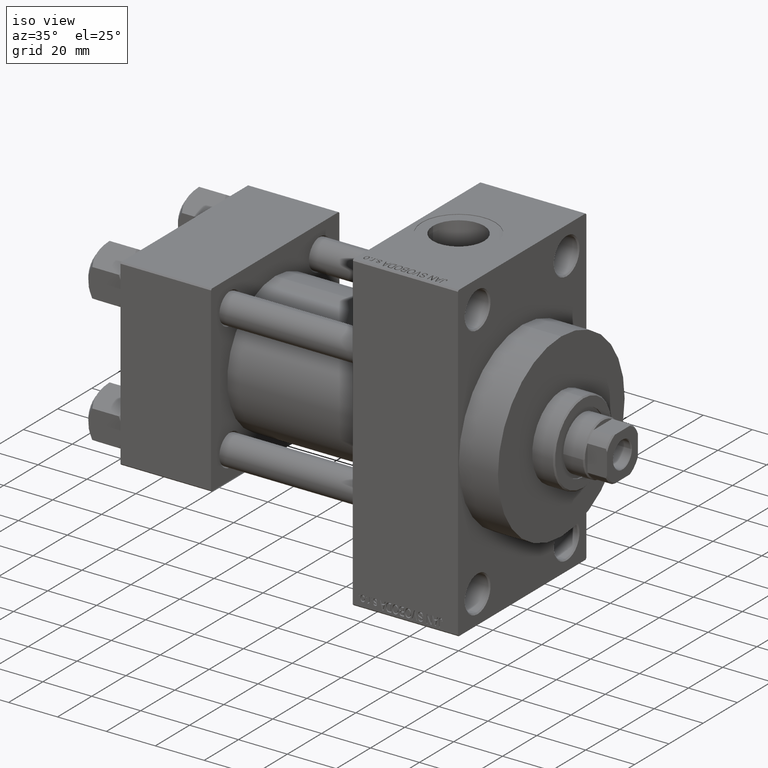
[diagram: clean part render]
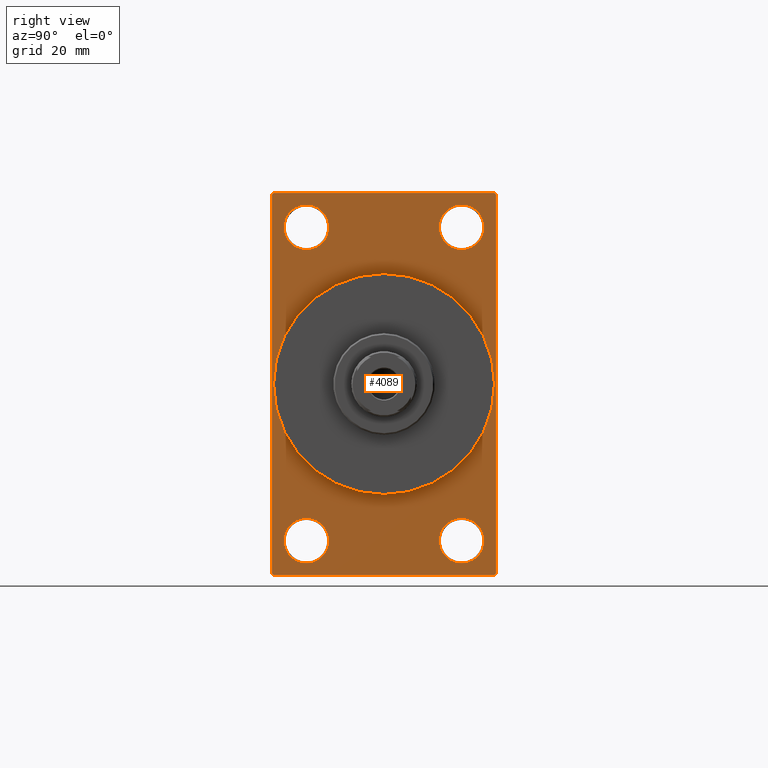
[diagram: tour spotlight — one face highlighted and labeled with its STEP entity id]
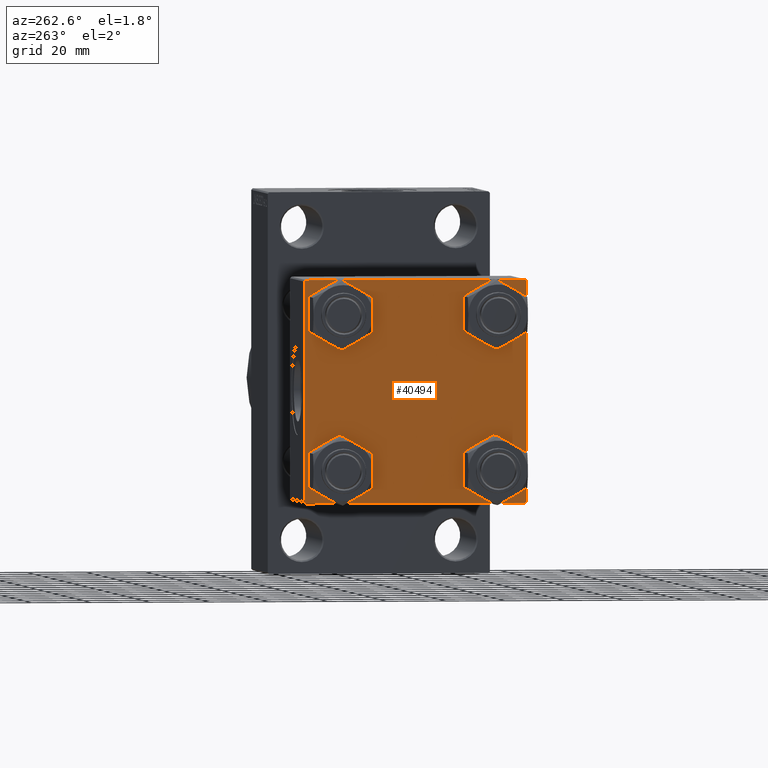
[diagram: tour spotlight — one face highlighted and labeled with its STEP entity id]
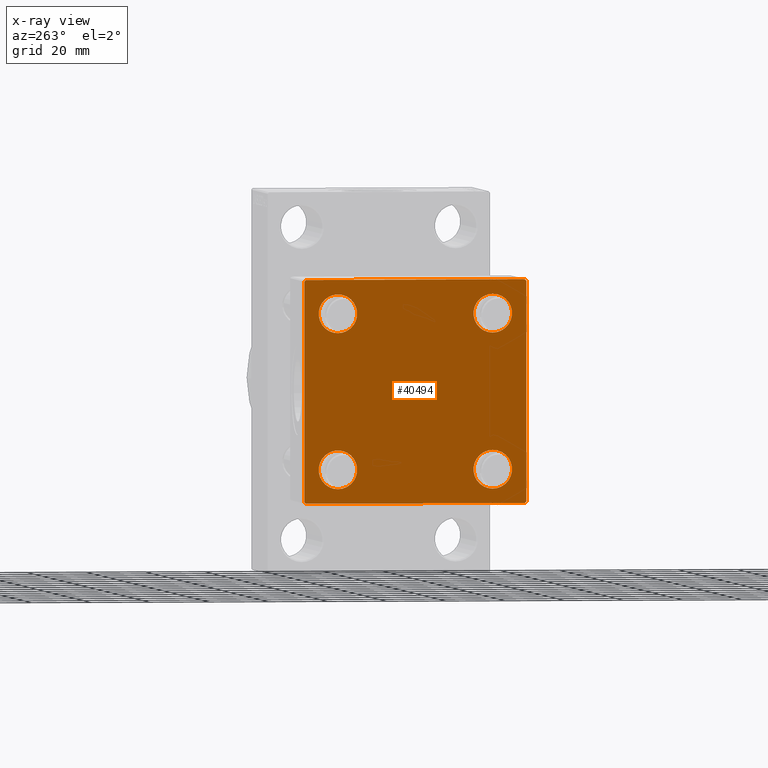
[diagram: x-ray of the same camera — body ghosted, this tour face saturated]
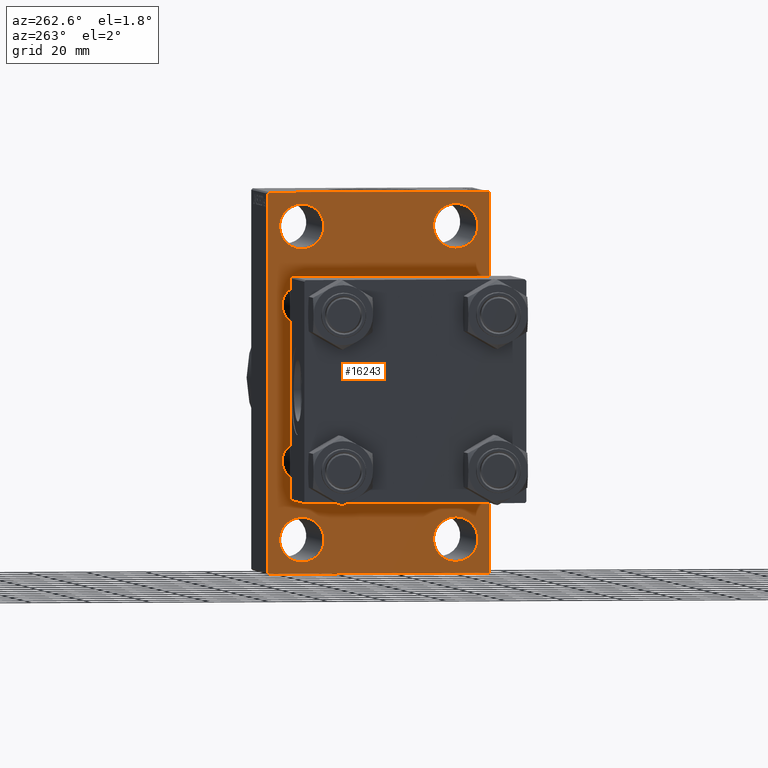
[diagram: tour spotlight — one face highlighted and labeled with its STEP entity id]
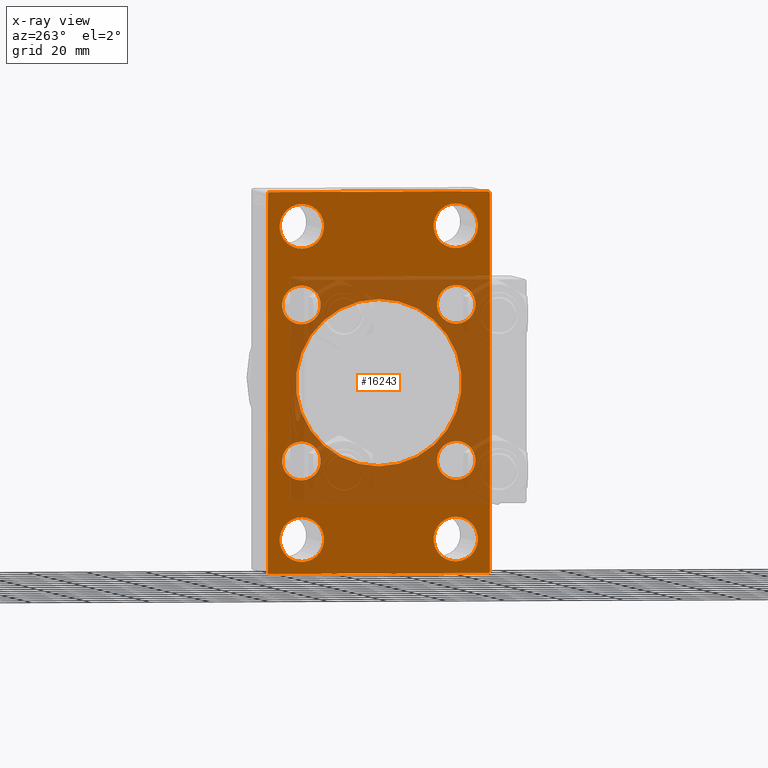
[diagram: x-ray of the same camera — body ghosted, this tour face saturated]
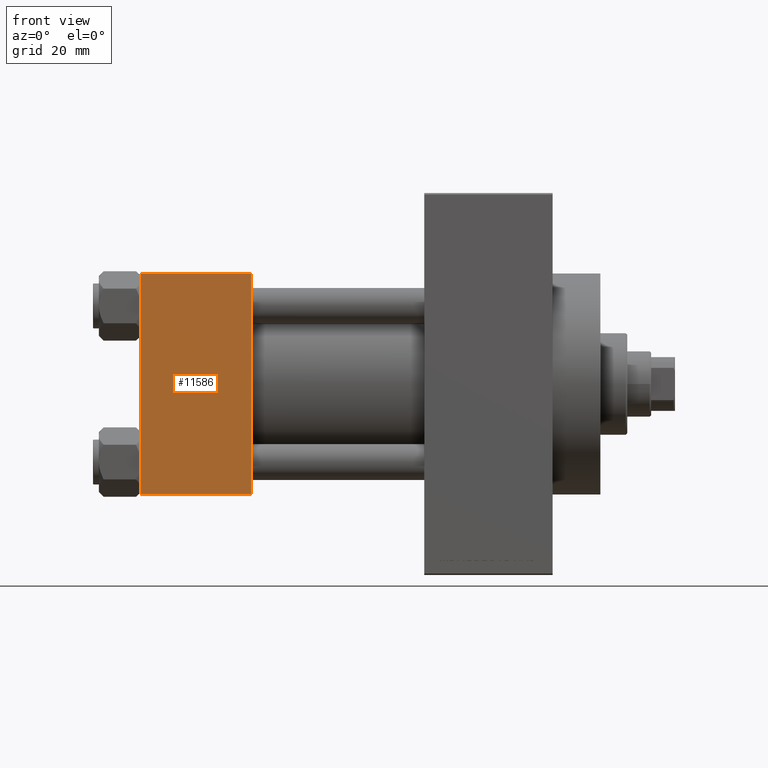
[diagram: tour spotlight — one face highlighted and labeled with its STEP entity id]
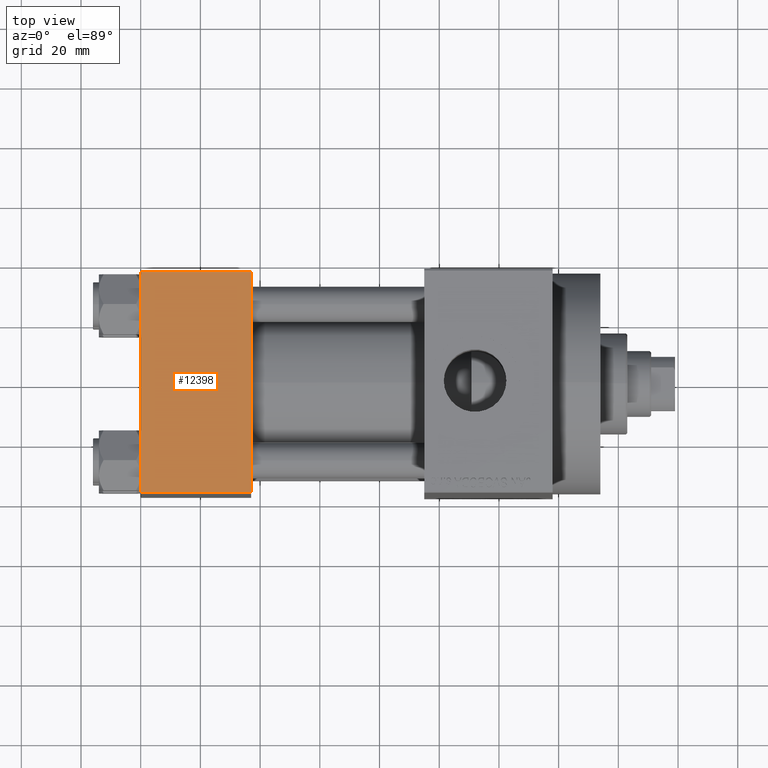
[diagram: tour spotlight — one face highlighted and labeled with its STEP entity id]
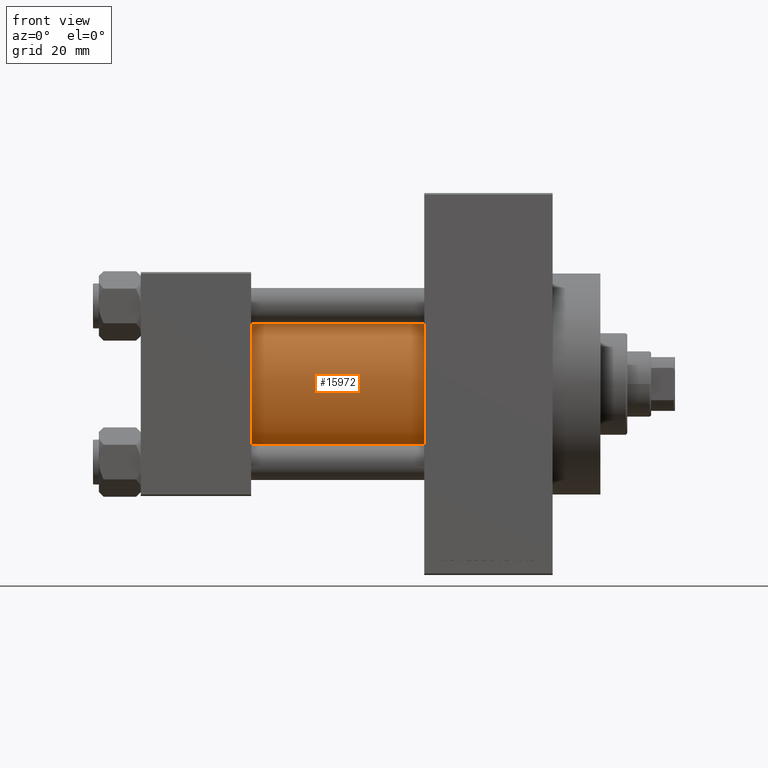
[diagram: tour spotlight — one face highlighted and labeled with its STEP entity id]
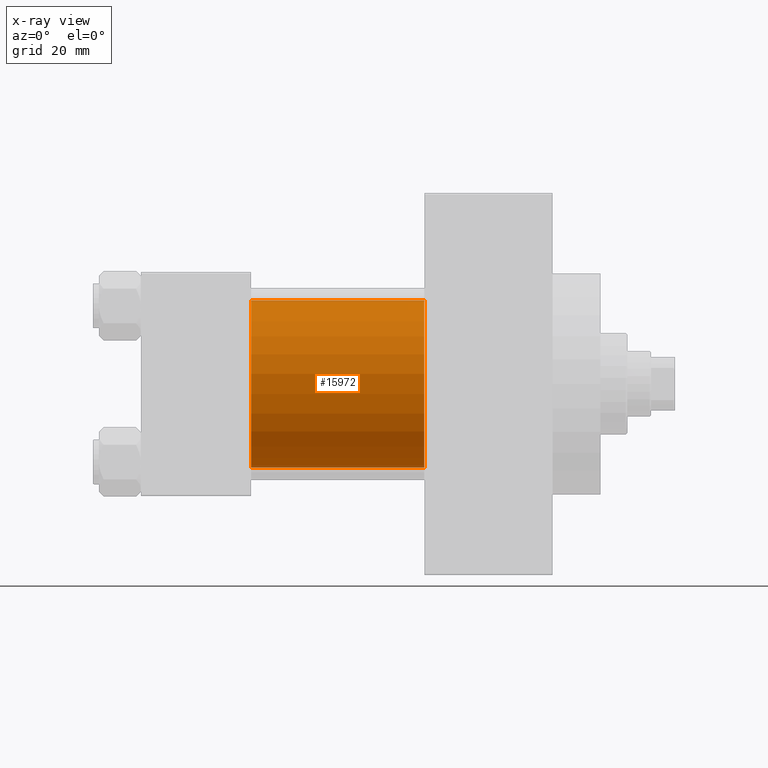
[diagram: x-ray of the same camera — body ghosted, this tour face saturated]
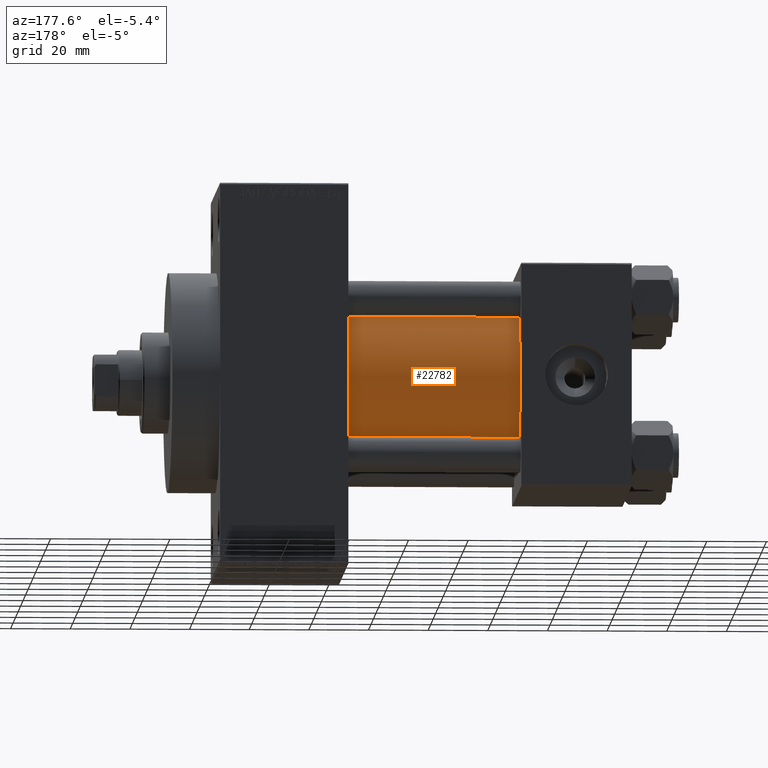
[diagram: tour spotlight — one face highlighted and labeled with its STEP entity id]
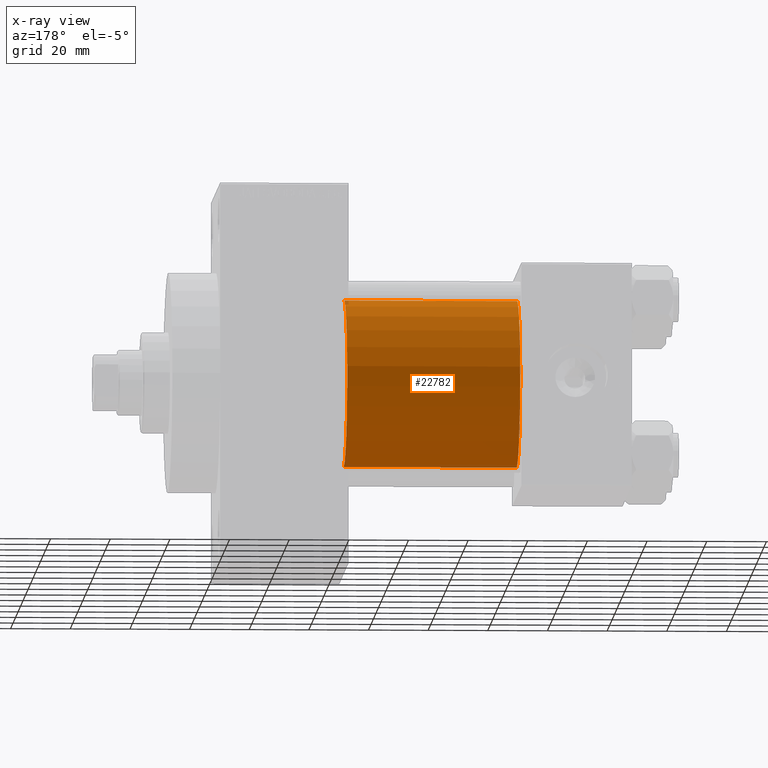
[diagram: x-ray of the same camera — body ghosted, this tour face saturated]
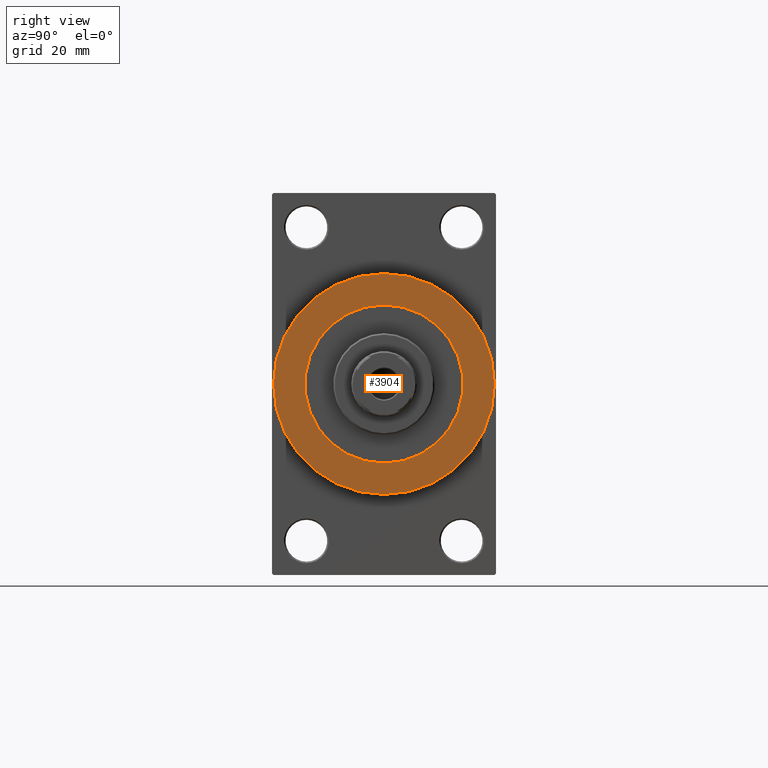
[diagram: tour spotlight — one face highlighted and labeled with its STEP entity id]
A machine part: a face-by-face anatomy tour. The part has 1104 B-rep faces; the first image is the clean iso view, then the 8 largest visible faces are spotlighted one at a time (largest first), each with its STEP entity span.

Face 1 — right view, entity #4089. In plain terms, the highlighted planar face has unit normal (-1, 0, 0).
Definition (entity closure, byte-faithful):
#271 = DIRECTION ( 'NONE',  ( 1.000000000000000000, 0.000000000000000000, 0.000000000000000000 ) ) ;
#351 = DIRECTION ( 'NONE',  ( 1.000000000000000000, 0.000000000000000000, 0.000000000000000000 ) ) ;
#485 = CARTESIAN_POINT ( 'NONE',  ( 138.0000000000000000, 26.00000000000000000, -44.99999999999998579 ) ) ;
#709 = DIRECTION ( 'NONE',  ( 0.000000000000000000, 0.000000000000000000, 1.000000000000000000 ) ) ;
#892 = CARTESIAN_POINT ( 'NONE',  ( 138.0000000000000000, 26.00000000000000000, 44.99999999999998579 ) ) ;
#997 = CARTESIAN_POINT ( 'NONE',  ( 138.0000000000000000, 36.99999999999997158, 63.99999999999998579 ) ) ;
#1010 = VERTEX_POINT ( 'NONE', #46142 ) ;
#1059 = CARTESIAN_POINT ( 'NONE',  ( 138.0000000000000000, -37.49999999999999289, 63.99999999999997158 ) ) ;
#1241 = ORIENTED_EDGE ( 'NONE', *, *, #24245, .F. ) ;
#1344 = FACE_BOUND ( 'NONE', #11183, .T. ) ;
#1390 = VECTOR ( 'NONE', #27463, 1000.000000000000000 ) ;
#1440 = CARTESIAN_POINT ( 'NONE',  ( 138.0000000000000000, -37.49999999999999289, 63.49999999999994316 ) ) ;
#1567 = DIRECTION ( 'NONE',  ( -1.000000000000000000, 0.000000000000000000, -0.000000000000000000 ) ) ;
#2023 = CARTESIAN_POINT ( 'NONE',  ( 138.0000000000000000, 26.00000000000000000, 52.49999999999999289 ) ) ;
#2053 = VERTEX_POINT ( 'NONE', #485 ) ;
#2396 = CARTESIAN_POINT ( 'NONE',  ( 138.0000000000000000, 37.49999999999999289, -64.00000000000000000 ) ) ;
#2544 = VERTEX_POINT ( 'NONE', #4903 ) ;
#2718 = EDGE_CURVE ( 'NONE', #37924, #1010, #23873, .T. ) ;
#2810 = VERTEX_POINT ( 'NONE', #16723 ) ;
#3056 = EDGE_CURVE ( 'NONE', #2544, #43993, #16551, .T. ) ;
#3122 = CARTESIAN_POINT ( 'NONE',  ( 138.0000000000000000, 37.49999999999999289, -63.50000000000001421 ) ) ;
#3209 = DIRECTION ( 'NONE',  ( -0.000000000000000000, 0.7071067811865573427, 0.7071067811865378028 ) ) ;
#3683 = CARTESIAN_POINT ( 'NONE',  ( 138.0000000000000000, 37.49999999999999289, -63.50000000000001421 ) ) ;
#4089 = ADVANCED_FACE ( 'NONE', ( #23532, #38358, #24242, #1344, #16139, #45282 ), #16376, .F. ) ;
#4402 = CARTESIAN_POINT ( 'NONE',  ( 138.0000000000000000, 26.00000000000000000, -52.49999999999999289 ) ) ;
#4903 = CARTESIAN_POINT ( 'NONE',  ( 138.0000000000000000, -25.99999999999999645, 60.00000000000000711 ) ) ;
#5167 = AXIS2_PLACEMENT_3D ( 'NONE', #34759, #5871, #19954 ) ;
#5176 = LINE ( 'NONE', #16159, #14798 ) ;
#5376 = AXIS2_PLACEMENT_3D ( 'NONE', #4402, #16095, #37597 ) ;
#5429 = VERTEX_POINT ( 'NONE', #13665 ) ;
#5871 = DIRECTION ( 'NONE',  ( -1.000000000000000000, 0.000000000000000000, -0.000000000000000000 ) ) ;
#6027 = CARTESIAN_POINT ( 'NONE',  ( 138.0000000000000000, 26.00000000000000000, 52.49999999999999289 ) ) ;
#6580 = EDGE_LOOP ( 'NONE', ( #24034, #22440 ) ) ;
#6774 = ORIENTED_EDGE ( 'NONE', *, *, #22164, .T. ) ;
#7009 = EDGE_CURVE ( 'NONE', #15728, #2810, #38832, .T. ) ;
#7127 = AXIS2_PLACEMENT_3D ( 'NONE', #7398, #271, #14809 ) ;
#7398 = CARTESIAN_POINT ( 'NONE',  ( 138.0000000000000000, 0.000000000000000000, 0.000000000000000000 ) ) ;
#7632 = CARTESIAN_POINT ( 'NONE',  ( 138.0000000000000000, 26.00000000000000000, -60.00000000000000000 ) ) ;
#7967 = LINE ( 'NONE', #1059, #34913 ) ;
#8494 = EDGE_CURVE ( 'NONE', #2810, #15728, #17508, .T. ) ;
#8665 = CARTESIAN_POINT ( 'NONE',  ( 138.0000000000000000, -25.99999999999999645, 44.99999999999999289 ) ) ;
#8913 = LINE ( 'NONE', #46172, #19383 ) ;
#9298 = LINE ( 'NONE', #1440, #16894 ) ;
#9634 = ORIENTED_EDGE ( 'NONE', *, *, #2718, .F. ) ;
#9823 = DIRECTION ( 'NONE',  ( 0.000000000000000000, 0.000000000000000000, 1.000000000000000000 ) ) ;
#10099 = AXIS2_PLACEMENT_3D ( 'NONE', #6027, #35616, #9823 ) ;
#10390 = EDGE_CURVE ( 'NONE', #2053, #24296, #45781, .T. ) ;
#10462 = ORIENTED_EDGE ( 'NONE', *, *, #8494, .T. ) ;
#11183 = EDGE_LOOP ( 'NONE', ( #32296, #6774 ) ) ;
#11686 = CIRCLE ( 'NONE', #7127, 37.00000000000000000 ) ;
#11870 = ORIENTED_EDGE ( 'NONE', *, *, #26747, .T. ) ;
#12107 = AXIS2_PLACEMENT_3D ( 'NONE', #22643, #26458, #709 ) ;
#12350 = ORIENTED_EDGE ( 'NONE', *, *, #14070, .T. ) ;
#12466 = EDGE_CURVE ( 'NONE', #24296, #2053, #40483, .T. ) ;
#13132 = CIRCLE ( 'NONE', #45944, 7.500000000000007105 ) ;
#13508 = CARTESIAN_POINT ( 'NONE',  ( 138.0000000000000000, -36.99999999999995737, 63.99999999999997158 ) ) ;
#13665 = CARTESIAN_POINT ( 'NONE',  ( 138.0000000000000000, -37.49999999999999289, -63.49999999999997158 ) ) ;
#13717 = ORIENTED_EDGE ( 'NONE', *, *, #3056, .T. ) ;
#13794 = ORIENTED_EDGE ( 'NONE', *, *, #44349, .T. ) ;
#14070 = EDGE_CURVE ( 'NONE', #22619, #41519, #9298, .T. ) ;
#14248 = AXIS2_PLACEMENT_3D ( 'NONE', #28795, #17133, #39332 ) ;
#14726 = EDGE_CURVE ( 'NONE', #43993, #2544, #13132, .T. ) ;
#14798 = VECTOR ( 'NONE', #19246, 1000.000000000000000 ) ;
#14809 = DIRECTION ( 'NONE',  ( 0.000000000000000000, 0.000000000000000000, -1.000000000000000000 ) ) ;
#15018 = CARTESIAN_POINT ( 'NONE',  ( 138.0000000000000000, 4.531193156845206793E-15, -37.00000000000000000 ) ) ;
#15038 = DIRECTION ( 'NONE',  ( 0.000000000000000000, 0.000000000000000000, 1.000000000000000000 ) ) ;
#15591 = CARTESIAN_POINT ( 'NONE',  ( 138.0000000000000000, -25.99999999999999645, -52.49999999999999289 ) ) ;
#15728 = VERTEX_POINT ( 'NONE', #22985 ) ;
#16095 = DIRECTION ( 'NONE',  ( -1.000000000000000000, 0.000000000000000000, -0.000000000000000000 ) ) ;
#16131 = EDGE_LOOP ( 'NONE', ( #17278, #10462 ) ) ;
#16139 = FACE_BOUND ( 'NONE', #39250, .T. ) ;
#16159 = CARTESIAN_POINT ( 'NONE',  ( 138.0000000000000000, 37.50000000000000000, 63.99999999999998579 ) ) ;
#16343 = DIRECTION ( 'NONE',  ( 0.000000000000000000, 0.000000000000000000, 1.000000000000000000 ) ) ;
#16376 = PLANE ( 'NONE',  #5167 ) ;
#16551 = CIRCLE ( 'NONE', #14248, 7.500000000000007105 ) ;
#16723 = CARTESIAN_POINT ( 'NONE',  ( 138.0000000000000000, -25.99999999999999645, -44.99999999999998579 ) ) ;
#16894 = VECTOR ( 'NONE', #45375, 1000.000000000000000 ) ;
#17133 = DIRECTION ( 'NONE',  ( -1.000000000000000000, 0.000000000000000000, -0.000000000000000000 ) ) ;
#17240 = ORIENTED_EDGE ( 'NONE', *, *, #30316, .F. ) ;
#17278 = ORIENTED_EDGE ( 'NONE', *, *, #7009, .T. ) ;
#17508 = CIRCLE ( 'NONE', #34266, 7.500000000000007105 ) ;
#18156 = CIRCLE ( 'NONE', #31127, 7.500000000000007105 ) ;
#19246 = DIRECTION ( 'NONE',  ( 0.000000000000000000, -5.421010862427522170E-17, -1.000000000000000000 ) ) ;
#19383 = VECTOR ( 'NONE', #34945, 1000.000000000000000 ) ;
#19396 = DIRECTION ( 'NONE',  ( 0.000000000000000000, 0.000000000000000000, -1.000000000000000000 ) ) ;
#19954 = DIRECTION ( 'NONE',  ( -0.000000000000000000, 0.000000000000000000, 1.000000000000000000 ) ) ;
#20119 = ORIENTED_EDGE ( 'NONE', *, *, #38998, .T. ) ;
#21223 = CIRCLE ( 'NONE', #39556, 37.00000000000000000 ) ;
#21844 = VECTOR ( 'NONE', #3209, 1000.000000000000000 ) ;
#22164 = EDGE_CURVE ( 'NONE', #40661, #30142, #30694, .T. ) ;
#22440 = ORIENTED_EDGE ( 'NONE', *, *, #10390, .T. ) ;
#22619 = VERTEX_POINT ( 'NONE', #13508 ) ;
#22643 = CARTESIAN_POINT ( 'NONE',  ( 138.0000000000000000, -25.99999999999999645, -52.49999999999999289 ) ) ;
#22985 = CARTESIAN_POINT ( 'NONE',  ( 138.0000000000000000, -25.99999999999999645, -60.00000000000000000 ) ) ;
#23532 = FACE_BOUND ( 'NONE', #42027, .T. ) ;
#23873 = LINE ( 'NONE', #2396, #1390 ) ;
#24034 = ORIENTED_EDGE ( 'NONE', *, *, #12466, .T. ) ;
#24242 = FACE_BOUND ( 'NONE', #6580, .T. ) ;
#24245 = EDGE_CURVE ( 'NONE', #40703, #29788, #11686, .T. ) ;
#24296 = VERTEX_POINT ( 'NONE', #7632 ) ;
#25807 = CARTESIAN_POINT ( 'NONE',  ( 138.0000000000000000, 37.50000000000000000, 63.49999999999998579 ) ) ;
#26458 = DIRECTION ( 'NONE',  ( -1.000000000000000000, 0.000000000000000000, -0.000000000000000000 ) ) ;
#26747 = EDGE_CURVE ( 'NONE', #5429, #1010, #41777, .T. ) ;
#27463 = DIRECTION ( 'NONE',  ( 0.000000000000000000, -1.000000000000000000, -1.850371707708594563E-16 ) ) ;
#27904 = DIRECTION ( 'NONE',  ( 0.000000000000000000, 0.7071067811865574537, -0.7071067811865376918 ) ) ;
#28122 = VECTOR ( 'NONE', #42746, 1000.000000000000000 ) ;
#28795 = CARTESIAN_POINT ( 'NONE',  ( 138.0000000000000000, -25.99999999999999645, 52.50000000000000000 ) ) ;
#29133 = CARTESIAN_POINT ( 'NONE',  ( 138.0000000000000000, 26.00000000000000000, -52.49999999999999289 ) ) ;
#29347 = EDGE_CURVE ( 'NONE', #29538, #22619, #8913, .T. ) ;
#29538 = VERTEX_POINT ( 'NONE', #997 ) ;
#29788 = VERTEX_POINT ( 'NONE', #15018 ) ;
#30142 = VERTEX_POINT ( 'NONE', #892 ) ;
#30316 = EDGE_CURVE ( 'NONE', #44199, #34833, #5176, .T. ) ;
#30429 = DIRECTION ( 'NONE',  ( -1.000000000000000000, 0.000000000000000000, -0.000000000000000000 ) ) ;
#30683 = CARTESIAN_POINT ( 'NONE',  ( 138.0000000000000000, -25.99999999999999645, 52.50000000000000000 ) ) ;
#30694 = CIRCLE ( 'NONE', #10099, 7.500000000000007105 ) ;
#31127 = AXIS2_PLACEMENT_3D ( 'NONE', #2023, #30429, #16343 ) ;
#31168 = LINE ( 'NONE', #3683, #21844 ) ;
#31989 = LINE ( 'NONE', #46789, #28122 ) ;
#32296 = ORIENTED_EDGE ( 'NONE', *, *, #43434, .T. ) ;
#34266 = AXIS2_PLACEMENT_3D ( 'NONE', #15591, #43154, #40914 ) ;
#34592 = CARTESIAN_POINT ( 'NONE',  ( 138.0000000000000000, 0.000000000000000000, 37.00000000000000000 ) ) ;
#34759 = CARTESIAN_POINT ( 'NONE',  ( 138.0000000000000000, 0.000000000000000000, 0.000000000000000000 ) ) ;
#34833 = VERTEX_POINT ( 'NONE', #3122 ) ;
#34913 = VECTOR ( 'NONE', #37115, 1000.000000000000000 ) ;
#34945 = DIRECTION ( 'NONE',  ( 0.000000000000000000, -1.000000000000000000, -1.850371707708594563E-16 ) ) ;
#35085 = CARTESIAN_POINT ( 'NONE',  ( 138.0000000000000000, -36.99999999999993605, -64.00000000000001421 ) ) ;
#35460 = ORIENTED_EDGE ( 'NONE', *, *, #41703, .T. ) ;
#35616 = DIRECTION ( 'NONE',  ( -1.000000000000000000, 0.000000000000000000, -0.000000000000000000 ) ) ;
#35917 = AXIS2_PLACEMENT_3D ( 'NONE', #29133, #37019, #15038 ) ;
#36809 = ORIENTED_EDGE ( 'NONE', *, *, #14726, .T. ) ;
#36893 = CARTESIAN_POINT ( 'NONE',  ( 138.0000000000000000, 36.99999999999999289, -64.00000000000000000 ) ) ;
#37019 = DIRECTION ( 'NONE',  ( -1.000000000000000000, 0.000000000000000000, -0.000000000000000000 ) ) ;
#37115 = DIRECTION ( 'NONE',  ( 0.000000000000000000, 0.000000000000000000, -1.000000000000000000 ) ) ;
#37146 = DIRECTION ( 'NONE',  ( 0.000000000000000000, 0.000000000000000000, 1.000000000000000000 ) ) ;
#37597 = DIRECTION ( 'NONE',  ( 0.000000000000000000, 0.000000000000000000, 1.000000000000000000 ) ) ;
#37924 = VERTEX_POINT ( 'NONE', #36893 ) ;
#38167 = ORIENTED_EDGE ( 'NONE', *, *, #43966, .F. ) ;
#38358 = FACE_BOUND ( 'NONE', #16131, .T. ) ;
#38832 = CIRCLE ( 'NONE', #12107, 7.500000000000007105 ) ;
#38998 = EDGE_CURVE ( 'NONE', #37924, #34833, #31168, .T. ) ;
#39250 = EDGE_LOOP ( 'NONE', ( #1241, #38167 ) ) ;
#39332 = DIRECTION ( 'NONE',  ( 0.000000000000000000, 0.000000000000000000, 1.000000000000000000 ) ) ;
#39556 = AXIS2_PLACEMENT_3D ( 'NONE', #41390, #351, #19396 ) ;
#40326 = EDGE_LOOP ( 'NONE', ( #35460, #11870, #9634, #20119, #17240, #13794, #40889, #12350 ) ) ;
#40483 = CIRCLE ( 'NONE', #35917, 7.500000000000007105 ) ;
#40661 = VERTEX_POINT ( 'NONE', #41048 ) ;
#40703 = VERTEX_POINT ( 'NONE', #34592 ) ;
#40889 = ORIENTED_EDGE ( 'NONE', *, *, #29347, .T. ) ;
#40914 = DIRECTION ( 'NONE',  ( 0.000000000000000000, 0.000000000000000000, 1.000000000000000000 ) ) ;
#41048 = CARTESIAN_POINT ( 'NONE',  ( 138.0000000000000000, 26.00000000000000000, 60.00000000000000000 ) ) ;
#41228 = CARTESIAN_POINT ( 'NONE',  ( 138.0000000000000000, -37.49999999999999289, 63.49999999999994316 ) ) ;
#41390 = CARTESIAN_POINT ( 'NONE',  ( 138.0000000000000000, 0.000000000000000000, 0.000000000000000000 ) ) ;
#41519 = VERTEX_POINT ( 'NONE', #41228 ) ;
#41703 = EDGE_CURVE ( 'NONE', #41519, #5429, #7967, .T. ) ;
#41777 = LINE ( 'NONE', #35085, #44453 ) ;
#42027 = EDGE_LOOP ( 'NONE', ( #36809, #13717 ) ) ;
#42746 = DIRECTION ( 'NONE',  ( 0.000000000000000000, -0.7071067811865672237, 0.7071067811865279218 ) ) ;
#43154 = DIRECTION ( 'NONE',  ( -1.000000000000000000, 0.000000000000000000, -0.000000000000000000 ) ) ;
#43434 = EDGE_CURVE ( 'NONE', #30142, #40661, #18156, .T. ) ;
#43966 = EDGE_CURVE ( 'NONE', #29788, #40703, #21223, .T. ) ;
#43993 = VERTEX_POINT ( 'NONE', #8665 ) ;
#44199 = VERTEX_POINT ( 'NONE', #25807 ) ;
#44349 = EDGE_CURVE ( 'NONE', #44199, #29538, #31989, .T. ) ;
#44453 = VECTOR ( 'NONE', #27904, 999.9999999999998863 ) ;
#45282 = FACE_OUTER_BOUND ( 'NONE', #40326, .T. ) ;
#45375 = DIRECTION ( 'NONE',  ( -0.000000000000000000, -0.7071067811865524577, -0.7071067811865426878 ) ) ;
#45781 = CIRCLE ( 'NONE', #5376, 7.500000000000007105 ) ;
#45944 = AXIS2_PLACEMENT_3D ( 'NONE', #30683, #1567, #37146 ) ;
#46142 = CARTESIAN_POINT ( 'NONE',  ( 138.0000000000000000, -36.99999999999993605, -64.00000000000001421 ) ) ;
#46172 = CARTESIAN_POINT ( 'NONE',  ( 138.0000000000000000, 37.50000000000000000, 63.99999999999998579 ) ) ;
#46789 = CARTESIAN_POINT ( 'NONE',  ( 138.0000000000000000, 36.99999999999997158, 63.99999999999998579 ) ) ;

Face 2 — auxiliary view, entity #40494. An x-ray twin of the same camera follows (body ghosted, this face saturated) — the face is partly hidden behind the body. In plain terms, the highlighted planar face has unit normal (-1, 0, 0).
Definition (entity closure, byte-faithful):
#54 = ORIENTED_EDGE ( 'NONE', *, *, #12078, .T. ) ;
#550 = DIRECTION ( 'NONE',  ( -0.000000000000000000, 0.7071067811865474617, 0.7071067811865474617 ) ) ;
#566 = ORIENTED_EDGE ( 'NONE', *, *, #38438, .T. ) ;
#662 = VECTOR ( 'NONE', #2110, 1000.000000000000000 ) ;
#800 = DIRECTION ( 'NONE',  ( 0.000000000000000000, 0.7071067811865474617, -0.7071067811865474617 ) ) ;
#1867 = AXIS2_PLACEMENT_3D ( 'NONE', #4461, #19011, #29059 ) ;
#1927 = VERTEX_POINT ( 'NONE', #7850 ) ;
#2077 = CARTESIAN_POINT ( 'NONE',  ( 0.000000000000000000, 26.14999999999999858, -26.15000000000000213 ) ) ;
#2110 = DIRECTION ( 'NONE',  ( 0.000000000000000000, -1.000000000000000000, -9.251858538542971581E-17 ) ) ;
#2305 = ORIENTED_EDGE ( 'NONE', *, *, #30135, .T. ) ;
#2419 = CARTESIAN_POINT ( 'NONE',  ( 0.000000000000000000, 26.14999999999999858, -19.64999999999998792 ) ) ;
#2955 = VERTEX_POINT ( 'NONE', #36977 ) ;
#3022 = CIRCLE ( 'NONE', #35811, 6.500000000000015987 ) ;
#3059 = CARTESIAN_POINT ( 'NONE',  ( 0.000000000000000000, -37.00000000000000711, 37.49999999999999289 ) ) ;
#3266 = EDGE_LOOP ( 'NONE', ( #2305, #54 ) ) ;
#3749 = VERTEX_POINT ( 'NONE', #21993 ) ;
#3845 = EDGE_CURVE ( 'NONE', #27300, #2955, #43390, .T. ) ;
#4317 = CARTESIAN_POINT ( 'NONE',  ( 0.000000000000000000, -26.14999999999999147, 32.65000000000003411 ) ) ;
#4461 = CARTESIAN_POINT ( 'NONE',  ( 0.000000000000000000, -26.14999999999999147, 26.15000000000000924 ) ) ;
#4687 = ORIENTED_EDGE ( 'NONE', *, *, #33272, .T. ) ;
#4703 = VERTEX_POINT ( 'NONE', #8780 ) ;
#5379 = CARTESIAN_POINT ( 'NONE',  ( 0.000000000000000000, 37.24999999999998579, -37.24999999999998579 ) ) ;
#5435 = CIRCLE ( 'NONE', #8562, 6.500000000000015987 ) ;
#5616 = AXIS2_PLACEMENT_3D ( 'NONE', #2077, #24734, #31672 ) ;
#5923 = CARTESIAN_POINT ( 'NONE',  ( 0.000000000000000000, -26.14999999999999147, -26.15000000000000924 ) ) ;
#6150 = AXIS2_PLACEMENT_3D ( 'NONE', #8765, #8042, #15446 ) ;
#6611 = DIRECTION ( 'NONE',  ( 0.000000000000000000, 0.000000000000000000, -1.000000000000000000 ) ) ;
#6677 = FACE_BOUND ( 'NONE', #3266, .T. ) ;
#6885 = CIRCLE ( 'NONE', #6150, 6.500000000000023093 ) ;
#7336 = CARTESIAN_POINT ( 'NONE',  ( 0.000000000000000000, -26.14999999999999147, -32.65000000000002700 ) ) ;
#7823 = VERTEX_POINT ( 'NONE', #18861 ) ;
#7850 = CARTESIAN_POINT ( 'NONE',  ( 0.000000000000000000, 26.14999999999999858, -32.65000000000001990 ) ) ;
#8042 = DIRECTION ( 'NONE',  ( 1.000000000000000000, -0.000000000000000000, 0.000000000000000000 ) ) ;
#8171 = EDGE_LOOP ( 'NONE', ( #38463, #4687 ) ) ;
#8420 = EDGE_CURVE ( 'NONE', #44194, #26843, #3022, .T. ) ;
#8539 = CARTESIAN_POINT ( 'NONE',  ( 0.000000000000000000, -37.50000000000000711, 37.49999999999999289 ) ) ;
#8550 = CARTESIAN_POINT ( 'NONE',  ( 0.000000000000000000, 37.49999999999999289, 37.50000000000000000 ) ) ;
#8562 = AXIS2_PLACEMENT_3D ( 'NONE', #24630, #20115, #28442 ) ;
#8765 = CARTESIAN_POINT ( 'NONE',  ( 0.000000000000000000, -26.14999999999999147, 26.15000000000000924 ) ) ;
#8780 = CARTESIAN_POINT ( 'NONE',  ( 0.000000000000000000, 26.14999999999999858, 19.64999999999998437 ) ) ;
#10371 = DIRECTION ( 'NONE',  ( 0.000000000000000000, 0.000000000000000000, 1.000000000000000000 ) ) ;
#10483 = FACE_OUTER_BOUND ( 'NONE', #33612, .T. ) ;
#10715 = DIRECTION ( 'NONE',  ( -0.000000000000000000, 0.000000000000000000, 1.000000000000000000 ) ) ;
#11131 = LINE ( 'NONE', #21653, #43912 ) ;
#11568 = DIRECTION ( 'NONE',  ( -0.000000000000000000, -0.7071067811865474617, -0.7071067811865474617 ) ) ;
#11727 = VERTEX_POINT ( 'NONE', #35548 ) ;
#12078 = EDGE_CURVE ( 'NONE', #3749, #35970, #6885, .T. ) ;
#13230 = EDGE_CURVE ( 'NONE', #2955, #21055, #37616, .T. ) ;
#13965 = DIRECTION ( 'NONE',  ( 1.000000000000000000, -0.000000000000000000, 0.000000000000000000 ) ) ;
#14305 = PLANE ( 'NONE',  #17326 ) ;
#15446 = DIRECTION ( 'NONE',  ( 0.000000000000000000, 0.000000000000000000, 1.000000000000000000 ) ) ;
#16576 = EDGE_CURVE ( 'NONE', #26843, #44194, #5435, .T. ) ;
#17165 = ORIENTED_EDGE ( 'NONE', *, *, #3845, .T. ) ;
#17166 = VECTOR ( 'NONE', #26203, 1000.000000000000000 ) ;
#17326 = AXIS2_PLACEMENT_3D ( 'NONE', #36056, #28872, #10715 ) ;
#17730 = CARTESIAN_POINT ( 'NONE',  ( 0.000000000000000000, 26.14999999999999858, 32.65000000000002700 ) ) ;
#18078 = EDGE_LOOP ( 'NONE', ( #46640, #39965 ) ) ;
#18548 = CIRCLE ( 'NONE', #5616, 6.500000000000015987 ) ;
#18861 = CARTESIAN_POINT ( 'NONE',  ( 0.000000000000000000, 36.99999999999999289, 37.50000000000000000 ) ) ;
#19011 = DIRECTION ( 'NONE',  ( 1.000000000000000000, -0.000000000000000000, 0.000000000000000000 ) ) ;
#19282 = CARTESIAN_POINT ( 'NONE',  ( 0.000000000000000000, -37.00000000000002132, -37.50000000000000711 ) ) ;
#20115 = DIRECTION ( 'NONE',  ( 1.000000000000000000, -0.000000000000000000, 0.000000000000000000 ) ) ;
#20482 = DIRECTION ( 'NONE',  ( 1.000000000000000000, -0.000000000000000000, 0.000000000000000000 ) ) ;
#21055 = VERTEX_POINT ( 'NONE', #25090 ) ;
#21136 = CARTESIAN_POINT ( 'NONE',  ( 0.000000000000000000, 37.49999999999999289, -37.50000000000000000 ) ) ;
#21242 = FACE_BOUND ( 'NONE', #18078, .T. ) ;
#21653 = CARTESIAN_POINT ( 'NONE',  ( 0.000000000000000000, -37.24999999999975842, -37.25000000000027001 ) ) ;
#21993 = CARTESIAN_POINT ( 'NONE',  ( 0.000000000000000000, -26.14999999999999147, 19.64999999999999147 ) ) ;
#22139 = DIRECTION ( 'NONE',  ( 1.000000000000000000, -0.000000000000000000, 0.000000000000000000 ) ) ;
#22420 = CIRCLE ( 'NONE', #1867, 6.500000000000023093 ) ;
#22452 = CARTESIAN_POINT ( 'NONE',  ( 0.000000000000000000, -26.14999999999999147, -19.64999999999999503 ) ) ;
#22738 = VECTOR ( 'NONE', #6611, 1000.000000000000000 ) ;
#23747 = EDGE_CURVE ( 'NONE', #36967, #1927, #18548, .T. ) ;
#24192 = ORIENTED_EDGE ( 'NONE', *, *, #44553, .F. ) ;
#24251 = ORIENTED_EDGE ( 'NONE', *, *, #37820, .T. ) ;
#24523 = DIRECTION ( 'NONE',  ( 0.000000000000000000, 0.000000000000000000, 1.000000000000000000 ) ) ;
#24630 = CARTESIAN_POINT ( 'NONE',  ( 0.000000000000000000, -26.14999999999999147, -26.15000000000000924 ) ) ;
#24734 = DIRECTION ( 'NONE',  ( 1.000000000000000000, -0.000000000000000000, 0.000000000000000000 ) ) ;
#25090 = CARTESIAN_POINT ( 'NONE',  ( 0.000000000000000000, 36.99999999999997868, -37.50000000000000000 ) ) ;
#25742 = VERTEX_POINT ( 'NONE', #30827 ) ;
#25837 = LINE ( 'NONE', #33238, #28975 ) ;
#26203 = DIRECTION ( 'NONE',  ( 0.000000000000000000, 9.251858538542971581E-17, -1.000000000000000000 ) ) ;
#26490 = ORIENTED_EDGE ( 'NONE', *, *, #47030, .T. ) ;
#26502 = VECTOR ( 'NONE', #800, 1000.000000000000114 ) ;
#26843 = VERTEX_POINT ( 'NONE', #7336 ) ;
#27300 = VERTEX_POINT ( 'NONE', #42779 ) ;
#28057 = ORIENTED_EDGE ( 'NONE', *, *, #30531, .F. ) ;
#28071 = LINE ( 'NONE', #21136, #30295 ) ;
#28442 = DIRECTION ( 'NONE',  ( 0.000000000000000000, 0.000000000000000000, 1.000000000000000000 ) ) ;
#28580 = CARTESIAN_POINT ( 'NONE',  ( 0.000000000000000000, 26.14999999999999858, 26.15000000000000213 ) ) ;
#28696 = AXIS2_PLACEMENT_3D ( 'NONE', #37192, #22139, #44581 ) ;
#28872 = DIRECTION ( 'NONE',  ( -1.000000000000000000, 0.000000000000000000, -0.000000000000000000 ) ) ;
#28975 = VECTOR ( 'NONE', #550, 1000.000000000000114 ) ;
#29059 = DIRECTION ( 'NONE',  ( 0.000000000000000000, 0.000000000000000000, 1.000000000000000000 ) ) ;
#29673 = LINE ( 'NONE', #44254, #26502 ) ;
#30135 = EDGE_CURVE ( 'NONE', #35970, #3749, #22420, .T. ) ;
#30295 = VECTOR ( 'NONE', #31428, 1000.000000000000000 ) ;
#30471 = ORIENTED_EDGE ( 'NONE', *, *, #32953, .T. ) ;
#30531 = EDGE_CURVE ( 'NONE', #11727, #25742, #40786, .T. ) ;
#30827 = CARTESIAN_POINT ( 'NONE',  ( 0.000000000000000000, -37.50000000000000000, -37.00000000000003553 ) ) ;
#31171 = ORIENTED_EDGE ( 'NONE', *, *, #8420, .T. ) ;
#31428 = DIRECTION ( 'NONE',  ( 0.000000000000000000, -1.000000000000000000, -9.251858538542972814E-17 ) ) ;
#31672 = DIRECTION ( 'NONE',  ( 0.000000000000000000, 0.000000000000000000, 1.000000000000000000 ) ) ;
#31935 = DIRECTION ( 'NONE',  ( 0.000000000000000000, 0.000000000000000000, 1.000000000000000000 ) ) ;
#32911 = ORIENTED_EDGE ( 'NONE', *, *, #13230, .T. ) ;
#32953 = EDGE_CURVE ( 'NONE', #44511, #25742, #11131, .T. ) ;
#33238 = CARTESIAN_POINT ( 'NONE',  ( -0.000000000000000000, -37.25000000000000000, 37.25000000000000000 ) ) ;
#33272 = EDGE_CURVE ( 'NONE', #4703, #33462, #41638, .T. ) ;
#33462 = VERTEX_POINT ( 'NONE', #17730 ) ;
#33612 = EDGE_LOOP ( 'NONE', ( #17165, #32911, #24251, #30471, #28057, #26490, #24192, #566 ) ) ;
#34075 = AXIS2_PLACEMENT_3D ( 'NONE', #28580, #42696, #31935 ) ;
#34746 = AXIS2_PLACEMENT_3D ( 'NONE', #40004, #13965, #10371 ) ;
#35233 = EDGE_CURVE ( 'NONE', #1927, #36967, #46268, .T. ) ;
#35548 = CARTESIAN_POINT ( 'NONE',  ( 0.000000000000000000, -37.50000000000000711, 36.99999999999999289 ) ) ;
#35585 = FACE_BOUND ( 'NONE', #40969, .T. ) ;
#35628 = CIRCLE ( 'NONE', #34075, 6.500000000000023093 ) ;
#35811 = AXIS2_PLACEMENT_3D ( 'NONE', #5923, #20482, #24523 ) ;
#35970 = VERTEX_POINT ( 'NONE', #4317 ) ;
#36056 = CARTESIAN_POINT ( 'NONE',  ( 0.000000000000000000, 0.000000000000000000, 0.000000000000000000 ) ) ;
#36231 = DIRECTION ( 'NONE',  ( 0.000000000000000000, -0.7071067811865524577, 0.7071067811865426878 ) ) ;
#36437 = EDGE_CURVE ( 'NONE', #33462, #4703, #35628, .T. ) ;
#36967 = VERTEX_POINT ( 'NONE', #2419 ) ;
#36977 = CARTESIAN_POINT ( 'NONE',  ( 0.000000000000000000, 37.49999999999999289, -36.99999999999998579 ) ) ;
#37192 = CARTESIAN_POINT ( 'NONE',  ( 0.000000000000000000, 26.14999999999999858, -26.15000000000000213 ) ) ;
#37460 = VERTEX_POINT ( 'NONE', #3059 ) ;
#37616 = LINE ( 'NONE', #5379, #38242 ) ;
#37820 = EDGE_CURVE ( 'NONE', #21055, #44511, #28071, .T. ) ;
#38175 = LINE ( 'NONE', #8550, #662 ) ;
#38242 = VECTOR ( 'NONE', #11568, 1000.000000000000114 ) ;
#38438 = EDGE_CURVE ( 'NONE', #7823, #27300, #29673, .T. ) ;
#38463 = ORIENTED_EDGE ( 'NONE', *, *, #36437, .T. ) ;
#39965 = ORIENTED_EDGE ( 'NONE', *, *, #35233, .T. ) ;
#40004 = CARTESIAN_POINT ( 'NONE',  ( 0.000000000000000000, 26.14999999999999858, 26.15000000000000213 ) ) ;
#40494 = ADVANCED_FACE ( 'NONE', ( #6677, #35585, #21242, #43220, #10483 ), #14305, .T. ) ;
#40786 = LINE ( 'NONE', #8539, #17166 ) ;
#40969 = EDGE_LOOP ( 'NONE', ( #31171, #44302 ) ) ;
#41638 = CIRCLE ( 'NONE', #34746, 6.500000000000023093 ) ;
#42696 = DIRECTION ( 'NONE',  ( 1.000000000000000000, -0.000000000000000000, 0.000000000000000000 ) ) ;
#42779 = CARTESIAN_POINT ( 'NONE',  ( 0.000000000000000000, 37.49999999999999289, 37.00000000000000000 ) ) ;
#43220 = FACE_BOUND ( 'NONE', #8171, .T. ) ;
#43390 = LINE ( 'NONE', #46737, #22738 ) ;
#43912 = VECTOR ( 'NONE', #36231, 1000.000000000000000 ) ;
#44194 = VERTEX_POINT ( 'NONE', #22452 ) ;
#44254 = CARTESIAN_POINT ( 'NONE',  ( 0.000000000000000000, 37.24999999999999289, 37.24999999999999289 ) ) ;
#44302 = ORIENTED_EDGE ( 'NONE', *, *, #16576, .T. ) ;
#44511 = VERTEX_POINT ( 'NONE', #19282 ) ;
#44553 = EDGE_CURVE ( 'NONE', #7823, #37460, #38175, .T. ) ;
#44581 = DIRECTION ( 'NONE',  ( 0.000000000000000000, 0.000000000000000000, 1.000000000000000000 ) ) ;
#46268 = CIRCLE ( 'NONE', #28696, 6.500000000000015987 ) ;
#46640 = ORIENTED_EDGE ( 'NONE', *, *, #23747, .T. ) ;
#46737 = CARTESIAN_POINT ( 'NONE',  ( 0.000000000000000000, 37.49999999999999289, 37.50000000000000000 ) ) ;
#47030 = EDGE_CURVE ( 'NONE', #11727, #37460, #25837, .T. ) ;

Face 3 — auxiliary view, entity #16243. An x-ray twin of the same camera follows (body ghosted, this face saturated) — the face is partly hidden behind the body. In plain terms, the highlighted planar face has unit normal (-1, 0, 0).
Definition (entity closure, byte-faithful):
#9 = CARTESIAN_POINT ( 'NONE',  ( 95.00000000000000000, -37.49999999999999289, 63.49999999999994316 ) ) ;
#674 = EDGE_CURVE ( 'NONE', #39996, #30619, #45731, .T. ) ;
#1012 = DIRECTION ( 'NONE',  ( 0.000000000000000000, 0.000000000000000000, -1.000000000000000000 ) ) ;
#1194 = EDGE_LOOP ( 'NONE', ( #42925, #43093 ) ) ;
#1286 = CARTESIAN_POINT ( 'NONE',  ( 95.00000000000000000, -26.14999999999999147, 26.15000000000000924 ) ) ;
#1565 = CARTESIAN_POINT ( 'NONE',  ( 95.00000000000000000, 37.50000000000000000, 63.49999999999998579 ) ) ;
#1730 = AXIS2_PLACEMENT_3D ( 'NONE', #2973, #28507, #31636 ) ;
#2319 = EDGE_LOOP ( 'NONE', ( #37128, #11823 ) ) ;
#2549 = EDGE_CURVE ( 'NONE', #13242, #5498, #45265, .T. ) ;
#2740 = FACE_BOUND ( 'NONE', #2319, .T. ) ;
#2776 = DIRECTION ( 'NONE',  ( 1.000000000000000000, -0.000000000000000000, 0.000000000000000000 ) ) ;
#2792 = LINE ( 'NONE', #39799, #30091 ) ;
#2965 = DIRECTION ( 'NONE',  ( 0.000000000000000000, -1.000000000000000000, -1.850371707708594563E-16 ) ) ;
#2973 = CARTESIAN_POINT ( 'NONE',  ( 95.00000000000000000, 0.000000000000000000, 0.000000000000000000 ) ) ;
#3541 = VERTEX_POINT ( 'NONE', #27290 ) ;
#3547 = AXIS2_PLACEMENT_3D ( 'NONE', #38056, #12718, #13199 ) ;
#3817 = DIRECTION ( 'NONE',  ( 1.000000000000000000, -0.000000000000000000, 0.000000000000000000 ) ) ;
#4037 = VERTEX_POINT ( 'NONE', #19714 ) ;
#4039 = DIRECTION ( 'NONE',  ( -0.000000000000000000, 0.7071067811865524577, 0.7071067811865426878 ) ) ;
#4107 = DIRECTION ( 'NONE',  ( 0.000000000000000000, 0.000000000000000000, 1.000000000000000000 ) ) ;
#4440 = AXIS2_PLACEMENT_3D ( 'NONE', #43221, #3817, #22178 ) ;
#4662 = DIRECTION ( 'NONE',  ( 1.000000000000000000, -0.000000000000000000, 0.000000000000000000 ) ) ;
#4983 = CARTESIAN_POINT ( 'NONE',  ( 95.00000000000000000, -36.99999999999993605, -64.00000000000001421 ) ) ;
#4987 = AXIS2_PLACEMENT_3D ( 'NONE', #28753, #36177, #43573 ) ;
#5098 = DIRECTION ( 'NONE',  ( 1.000000000000000000, -0.000000000000000000, 0.000000000000000000 ) ) ;
#5309 = CARTESIAN_POINT ( 'NONE',  ( 95.00000000000000000, 50.49999999999894840, 50.50000000000176215 ) ) ;
#5387 = VERTEX_POINT ( 'NONE', #17486 ) ;
#5498 = VERTEX_POINT ( 'NONE', #28456 ) ;
#5538 = CIRCLE ( 'NONE', #26004, 7.499999999999978684 ) ;
#6191 = AXIS2_PLACEMENT_3D ( 'NONE', #40261, #7057, #18038 ) ;
#6197 = VERTEX_POINT ( 'NONE', #42640 ) ;
#6298 = EDGE_CURVE ( 'NONE', #35919, #22196, #8250, .T. ) ;
#6320 = FACE_BOUND ( 'NONE', #14846, .T. ) ;
#6381 = CARTESIAN_POINT ( 'NONE',  ( 95.00000000000000000, 26.14999999999999858, -32.65000000000001279 ) ) ;
#6717 = CIRCLE ( 'NONE', #4440, 7.499999999999978684 ) ;
#6841 = CARTESIAN_POINT ( 'NONE',  ( 95.00000000000000000, 26.14999999999999858, 26.15000000000000213 ) ) ;
#6891 = EDGE_CURVE ( 'NONE', #22196, #35919, #31143, .T. ) ;
#6930 = EDGE_CURVE ( 'NONE', #29145, #20449, #6717, .T. ) ;
#6973 = DIRECTION ( 'NONE',  ( 0.000000000000000000, 0.000000000000000000, 1.000000000000000000 ) ) ;
#7057 = DIRECTION ( 'NONE',  ( 1.000000000000000000, -0.000000000000000000, 0.000000000000000000 ) ) ;
#7210 = CARTESIAN_POINT ( 'NONE',  ( 95.00000000000000000, 26.14999999999999858, 26.15000000000000213 ) ) ;
#7271 = CARTESIAN_POINT ( 'NONE',  ( 95.00000000000000000, -2.602085213965210642E-15, 0.000000000000000000 ) ) ;
#7339 = ORIENTED_EDGE ( 'NONE', *, *, #30666, .T. ) ;
#7371 = CARTESIAN_POINT ( 'NONE',  ( 95.00000000000000000, -50.49999999999970868, 50.50000000000040501 ) ) ;
#7471 = ORIENTED_EDGE ( 'NONE', *, *, #30796, .T. ) ;
#7506 = CARTESIAN_POINT ( 'NONE',  ( 95.00000000000000000, -2.602085213965210642E-15, 28.00000000000000000 ) ) ;
#7631 = CARTESIAN_POINT ( 'NONE',  ( 95.00000000000000000, 26.00000000000000000, 45.00000000000001421 ) ) ;
#8250 = CIRCLE ( 'NONE', #38801, 6.500000000000008882 ) ;
#8553 = CARTESIAN_POINT ( 'NONE',  ( 95.00000000000000000, 26.00000000000000000, 59.99999999999997158 ) ) ;
#8882 = CARTESIAN_POINT ( 'NONE',  ( 95.00000000000000000, 26.00000000000000000, -59.99999999999997158 ) ) ;
#8957 = CIRCLE ( 'NONE', #35668, 6.500000000000008882 ) ;
#8962 = CARTESIAN_POINT ( 'NONE',  ( 95.00000000000000000, 8.269258236473776482E-16, -28.00000000000000000 ) ) ;
#8964 = EDGE_CURVE ( 'NONE', #44475, #30619, #33625, .T. ) ;
#9134 = AXIS2_PLACEMENT_3D ( 'NONE', #21385, #2776, #31670 ) ;
#9282 = VECTOR ( 'NONE', #41131, 1000.000000000000000 ) ;
#10100 = VERTEX_POINT ( 'NONE', #47221 ) ;
#10133 = VERTEX_POINT ( 'NONE', #43872 ) ;
#10162 = CIRCLE ( 'NONE', #45946, 28.00000000000000000 ) ;
#10174 = CARTESIAN_POINT ( 'NONE',  ( 95.00000000000000000, -36.99999999999995737, 63.99999999999997158 ) ) ;
#10934 = ORIENTED_EDGE ( 'NONE', *, *, #2549, .T. ) ;
#11028 = DIRECTION ( 'NONE',  ( 1.000000000000000000, -0.000000000000000000, 0.000000000000000000 ) ) ;
#11120 = EDGE_LOOP ( 'NONE', ( #22869, #46421, #14274, #41787, #21303, #39781, #10934, #7339 ) ) ;
#11267 = CARTESIAN_POINT ( 'NONE',  ( 95.00000000000000000, -26.14999999999999147, -19.65000000000000213 ) ) ;
#11290 = VERTEX_POINT ( 'NONE', #45660 ) ;
#11580 = VERTEX_POINT ( 'NONE', #7631 ) ;
#11791 = CIRCLE ( 'NONE', #14078, 7.499999999999978684 ) ;
#11823 = ORIENTED_EDGE ( 'NONE', *, *, #28155, .T. ) ;
#12181 = DIRECTION ( 'NONE',  ( 1.000000000000000000, -0.000000000000000000, 0.000000000000000000 ) ) ;
#12706 = AXIS2_PLACEMENT_3D ( 'NONE', #43500, #17253, #46157 ) ;
#12718 = DIRECTION ( 'NONE',  ( 1.000000000000000000, -0.000000000000000000, 0.000000000000000000 ) ) ;
#12754 = CARTESIAN_POINT ( 'NONE',  ( 95.00000000000000000, -25.99999999999999645, -52.49999999999999289 ) ) ;
#12852 = CARTESIAN_POINT ( 'NONE',  ( 95.00000000000000000, -25.99999999999999645, -59.99999999999997158 ) ) ;
#13007 = FACE_BOUND ( 'NONE', #26697, .T. ) ;
#13140 = EDGE_CURVE ( 'NONE', #6197, #47015, #41261, .T. ) ;
#13199 = DIRECTION ( 'NONE',  ( 0.000000000000000000, 0.000000000000000000, 1.000000000000000000 ) ) ;
#13242 = VERTEX_POINT ( 'NONE', #1565 ) ;
#13477 = FACE_BOUND ( 'NONE', #42505, .T. ) ;
#13680 = EDGE_CURVE ( 'NONE', #39996, #13242, #37552, .T. ) ;
#13942 = PLANE ( 'NONE',  #1730 ) ;
#14078 = AXIS2_PLACEMENT_3D ( 'NONE', #29499, #4662, #44079 ) ;
#14274 = ORIENTED_EDGE ( 'NONE', *, *, #19961, .F. ) ;
#14684 = DIRECTION ( 'NONE',  ( 0.000000000000000000, 0.000000000000000000, -1.000000000000000000 ) ) ;
#14846 = EDGE_LOOP ( 'NONE', ( #34626, #33955 ) ) ;
#15205 = CARTESIAN_POINT ( 'NONE',  ( 95.00000000000000000, -25.99999999999999645, 52.50000000000000000 ) ) ;
#16178 = CIRCLE ( 'NONE', #34484, 7.499999999999978684 ) ;
#16214 = LINE ( 'NONE', #31257, #16344 ) ;
#16243 = ADVANCED_FACE ( 'NONE', ( #13007, #35453, #39045, #42856, #6320, #2740, #13477, #17304, #20415, #31859 ), #13942, .T. ) ;
#16344 = VECTOR ( 'NONE', #30776, 1000.000000000000000 ) ;
#16517 = EDGE_CURVE ( 'NONE', #31943, #11580, #5538, .T. ) ;
#16727 = VECTOR ( 'NONE', #4039, 1000.000000000000000 ) ;
#17116 = CARTESIAN_POINT ( 'NONE',  ( 95.00000000000000000, -25.99999999999999645, -45.00000000000001421 ) ) ;
#17234 = ORIENTED_EDGE ( 'NONE', *, *, #22817, .T. ) ;
#17253 = DIRECTION ( 'NONE',  ( 1.000000000000000000, -0.000000000000000000, 0.000000000000000000 ) ) ;
#17277 = EDGE_CURVE ( 'NONE', #45475, #11290, #46211, .T. ) ;
#17304 = FACE_BOUND ( 'NONE', #1194, .T. ) ;
#17486 = CARTESIAN_POINT ( 'NONE',  ( 95.00000000000000000, -25.99999999999999645, 45.00000000000002132 ) ) ;
#17532 = VERTEX_POINT ( 'NONE', #30866 ) ;
#17542 = CARTESIAN_POINT ( 'NONE',  ( 95.00000000000000000, -50.49999999999945999, -50.50000000000086686 ) ) ;
#17668 = DIRECTION ( 'NONE',  ( 1.000000000000000000, -0.000000000000000000, 0.000000000000000000 ) ) ;
#17811 = EDGE_CURVE ( 'NONE', #10133, #5387, #24001, .T. ) ;
#18038 = DIRECTION ( 'NONE',  ( 0.000000000000000000, 0.000000000000000000, 1.000000000000000000 ) ) ;
#18043 = DIRECTION ( 'NONE',  ( -0.000000000000000000, -0.7071067811865573427, -0.7071067811865378028 ) ) ;
#18542 = VERTEX_POINT ( 'NONE', #8962 ) ;
#19189 = VECTOR ( 'NONE', #1012, 1000.000000000000000 ) ;
#19371 = LINE ( 'NONE', #23201, #19189 ) ;
#19389 = CARTESIAN_POINT ( 'NONE',  ( 95.00000000000000000, 26.00000000000000000, 52.49999999999999289 ) ) ;
#19418 = AXIS2_PLACEMENT_3D ( 'NONE', #33911, #12181, #44907 ) ;
#19696 = DIRECTION ( 'NONE',  ( 0.000000000000000000, -5.421010862427522170E-17, -1.000000000000000000 ) ) ;
#19714 = CARTESIAN_POINT ( 'NONE',  ( 95.00000000000000000, 26.14999999999999858, 19.64999999999999147 ) ) ;
#19961 = EDGE_CURVE ( 'NONE', #44475, #11290, #19371, .T. ) ;
#20415 = FACE_BOUND ( 'NONE', #41186, .T. ) ;
#20449 = VERTEX_POINT ( 'NONE', #17116 ) ;
#20656 = EDGE_CURVE ( 'NONE', #20449, #29145, #16178, .T. ) ;
#20718 = CARTESIAN_POINT ( 'NONE',  ( 95.00000000000000000, 36.99999999999997158, 63.99999999999998579 ) ) ;
#21303 = ORIENTED_EDGE ( 'NONE', *, *, #674, .F. ) ;
#21385 = CARTESIAN_POINT ( 'NONE',  ( 95.00000000000000000, 26.14999999999999858, -26.15000000000000213 ) ) ;
#21665 = DIRECTION ( 'NONE',  ( 0.000000000000000000, 0.000000000000000000, 1.000000000000000000 ) ) ;
#21836 = DIRECTION ( 'NONE',  ( 1.000000000000000000, 0.000000000000000000, 0.000000000000000000 ) ) ;
#21963 = VECTOR ( 'NONE', #19696, 1000.000000000000000 ) ;
#22109 = DIRECTION ( 'NONE',  ( 1.000000000000000000, -0.000000000000000000, 0.000000000000000000 ) ) ;
#22112 = ORIENTED_EDGE ( 'NONE', *, *, #39277, .T. ) ;
#22178 = DIRECTION ( 'NONE',  ( 0.000000000000000000, 0.000000000000000000, 1.000000000000000000 ) ) ;
#22196 = VERTEX_POINT ( 'NONE', #46144 ) ;
#22384 = AXIS2_PLACEMENT_3D ( 'NONE', #6841, #22109, #28340 ) ;
#22661 = VERTEX_POINT ( 'NONE', #7506 ) ;
#22787 = DIRECTION ( 'NONE',  ( 0.000000000000000000, 0.000000000000000000, 1.000000000000000000 ) ) ;
#22817 = EDGE_CURVE ( 'NONE', #18542, #22661, #29959, .T. ) ;
#22869 = ORIENTED_EDGE ( 'NONE', *, *, #29961, .T. ) ;
#23201 = CARTESIAN_POINT ( 'NONE',  ( 95.00000000000000000, -37.49999999999999289, 63.99999999999997158 ) ) ;
#23216 = AXIS2_PLACEMENT_3D ( 'NONE', #15205, #32646, #21665 ) ;
#23287 = EDGE_CURVE ( 'NONE', #22661, #18542, #10162, .T. ) ;
#23345 = ORIENTED_EDGE ( 'NONE', *, *, #32321, .T. ) ;
#23620 = CIRCLE ( 'NONE', #9134, 6.500000000000008882 ) ;
#24001 = CIRCLE ( 'NONE', #19418, 7.499999999999978684 ) ;
#24135 = CIRCLE ( 'NONE', #3547, 7.499999999999978684 ) ;
#24851 = VERTEX_POINT ( 'NONE', #8882 ) ;
#25433 = ORIENTED_EDGE ( 'NONE', *, *, #16517, .T. ) ;
#25560 = CIRCLE ( 'NONE', #4987, 7.499999999999978684 ) ;
#26004 = AXIS2_PLACEMENT_3D ( 'NONE', #19389, #33958, #44712 ) ;
#26576 = CARTESIAN_POINT ( 'NONE',  ( 95.00000000000000000, 26.00000000000000000, -45.00000000000001421 ) ) ;
#26697 = EDGE_LOOP ( 'NONE', ( #44742, #29427 ) ) ;
#27290 = CARTESIAN_POINT ( 'NONE',  ( 95.00000000000000000, 36.99999999999999289, -64.00000000000000000 ) ) ;
#27328 = DIRECTION ( 'NONE',  ( 1.000000000000000000, -0.000000000000000000, 0.000000000000000000 ) ) ;
#28155 = EDGE_CURVE ( 'NONE', #4037, #17532, #42263, .T. ) ;
#28277 = EDGE_LOOP ( 'NONE', ( #7471, #37168 ) ) ;
#28340 = DIRECTION ( 'NONE',  ( 0.000000000000000000, 0.000000000000000000, 1.000000000000000000 ) ) ;
#28456 = CARTESIAN_POINT ( 'NONE',  ( 95.00000000000000000, 37.49999999999999289, -63.50000000000001421 ) ) ;
#28469 = CARTESIAN_POINT ( 'NONE',  ( 95.00000000000000000, -26.14999999999999147, -26.15000000000000924 ) ) ;
#28480 = CARTESIAN_POINT ( 'NONE',  ( 95.00000000000000000, -2.602085213965210642E-15, 0.000000000000000000 ) ) ;
#28507 = DIRECTION ( 'NONE',  ( -1.000000000000000000, 0.000000000000000000, -0.000000000000000000 ) ) ;
#28511 = DIRECTION ( 'NONE',  ( 0.000000000000000000, -0.7071067811865574537, 0.7071067811865376918 ) ) ;
#28753 = CARTESIAN_POINT ( 'NONE',  ( 95.00000000000000000, 26.00000000000000000, 52.49999999999999289 ) ) ;
#28895 = EDGE_LOOP ( 'NONE', ( #31934, #38086 ) ) ;
#29110 = CARTESIAN_POINT ( 'NONE',  ( 95.00000000000000000, -26.14999999999999147, 26.15000000000000924 ) ) ;
#29145 = VERTEX_POINT ( 'NONE', #12852 ) ;
#29162 = CARTESIAN_POINT ( 'NONE',  ( 95.00000000000000000, -26.14999999999999147, 19.65000000000000213 ) ) ;
#29427 = ORIENTED_EDGE ( 'NONE', *, *, #30077, .T. ) ;
#29499 = CARTESIAN_POINT ( 'NONE',  ( 95.00000000000000000, 26.00000000000000000, -52.49999999999999289 ) ) ;
#29959 = CIRCLE ( 'NONE', #46016, 28.00000000000000000 ) ;
#29961 = EDGE_CURVE ( 'NONE', #3541, #45475, #16214, .T. ) ;
#30077 = EDGE_CURVE ( 'NONE', #5387, #10133, #44552, .T. ) ;
#30091 = VECTOR ( 'NONE', #18043, 1000.000000000000000 ) ;
#30619 = VERTEX_POINT ( 'NONE', #10174 ) ;
#30666 = EDGE_CURVE ( 'NONE', #5498, #3541, #2792, .T. ) ;
#30776 = DIRECTION ( 'NONE',  ( 0.000000000000000000, -1.000000000000000000, -1.850371707708594563E-16 ) ) ;
#30796 = EDGE_CURVE ( 'NONE', #44642, #24851, #11791, .T. ) ;
#30866 = CARTESIAN_POINT ( 'NONE',  ( 95.00000000000000000, 26.14999999999999858, 32.65000000000001990 ) ) ;
#31143 = CIRCLE ( 'NONE', #37241, 6.500000000000008882 ) ;
#31257 = CARTESIAN_POINT ( 'NONE',  ( 95.00000000000000000, 37.49999999999999289, -64.00000000000000000 ) ) ;
#31297 = VERTEX_POINT ( 'NONE', #6381 ) ;
#31636 = DIRECTION ( 'NONE',  ( -0.000000000000000000, 0.000000000000000000, 1.000000000000000000 ) ) ;
#31670 = DIRECTION ( 'NONE',  ( 0.000000000000000000, 0.000000000000000000, 1.000000000000000000 ) ) ;
#31859 = FACE_OUTER_BOUND ( 'NONE', #11120, .T. ) ;
#31934 = ORIENTED_EDGE ( 'NONE', *, *, #20656, .T. ) ;
#31943 = VERTEX_POINT ( 'NONE', #8553 ) ;
#32089 = CARTESIAN_POINT ( 'NONE',  ( 95.00000000000000000, 37.50000000000000000, 63.99999999999998579 ) ) ;
#32228 = DIRECTION ( 'NONE',  ( 0.000000000000000000, 0.000000000000000000, 1.000000000000000000 ) ) ;
#32321 = EDGE_CURVE ( 'NONE', #11580, #31943, #25560, .T. ) ;
#32646 = DIRECTION ( 'NONE',  ( 1.000000000000000000, -0.000000000000000000, 0.000000000000000000 ) ) ;
#33625 = LINE ( 'NONE', #7371, #16727 ) ;
#33911 = CARTESIAN_POINT ( 'NONE',  ( 95.00000000000000000, -25.99999999999999645, 52.50000000000000000 ) ) ;
#33955 = ORIENTED_EDGE ( 'NONE', *, *, #6298, .T. ) ;
#33958 = DIRECTION ( 'NONE',  ( 1.000000000000000000, -0.000000000000000000, 0.000000000000000000 ) ) ;
#34484 = AXIS2_PLACEMENT_3D ( 'NONE', #12754, #27328, #22787 ) ;
#34626 = ORIENTED_EDGE ( 'NONE', *, *, #6891, .T. ) ;
#35419 = DIRECTION ( 'NONE',  ( 1.000000000000000000, -0.000000000000000000, 0.000000000000000000 ) ) ;
#35453 = FACE_BOUND ( 'NONE', #28895, .T. ) ;
#35646 = VECTOR ( 'NONE', #2965, 1000.000000000000000 ) ;
#35668 = AXIS2_PLACEMENT_3D ( 'NONE', #7210, #11028, #4107 ) ;
#35826 = EDGE_CURVE ( 'NONE', #24851, #44642, #24135, .T. ) ;
#35919 = VERTEX_POINT ( 'NONE', #29162 ) ;
#36177 = DIRECTION ( 'NONE',  ( 1.000000000000000000, -0.000000000000000000, 0.000000000000000000 ) ) ;
#36784 = EDGE_CURVE ( 'NONE', #47015, #6197, #41735, .T. ) ;
#37128 = ORIENTED_EDGE ( 'NONE', *, *, #41924, .T. ) ;
#37134 = AXIS2_PLACEMENT_3D ( 'NONE', #28469, #35419, #6973 ) ;
#37168 = ORIENTED_EDGE ( 'NONE', *, *, #35826, .T. ) ;
#37241 = AXIS2_PLACEMENT_3D ( 'NONE', #29110, #17668, #32228 ) ;
#37552 = LINE ( 'NONE', #5309, #9282 ) ;
#38056 = CARTESIAN_POINT ( 'NONE',  ( 95.00000000000000000, 26.00000000000000000, -52.49999999999999289 ) ) ;
#38086 = ORIENTED_EDGE ( 'NONE', *, *, #6930, .T. ) ;
#38801 = AXIS2_PLACEMENT_3D ( 'NONE', #1286, #5098, #40921 ) ;
#38920 = ORIENTED_EDGE ( 'NONE', *, *, #46703, .T. ) ;
#39045 = FACE_BOUND ( 'NONE', #28277, .T. ) ;
#39277 = EDGE_CURVE ( 'NONE', #10100, #31297, #46302, .T. ) ;
#39478 = DIRECTION ( 'NONE',  ( 1.000000000000000000, 0.000000000000000000, 0.000000000000000000 ) ) ;
#39781 = ORIENTED_EDGE ( 'NONE', *, *, #13680, .T. ) ;
#39799 = CARTESIAN_POINT ( 'NONE',  ( 95.00000000000000000, 50.49999999999948841, -50.50000000000088107 ) ) ;
#39885 = VECTOR ( 'NONE', #28511, 999.9999999999998863 ) ;
#39996 = VERTEX_POINT ( 'NONE', #20718 ) ;
#40261 = CARTESIAN_POINT ( 'NONE',  ( 95.00000000000000000, -26.14999999999999147, -26.15000000000000924 ) ) ;
#40921 = DIRECTION ( 'NONE',  ( 0.000000000000000000, 0.000000000000000000, 1.000000000000000000 ) ) ;
#41131 = DIRECTION ( 'NONE',  ( 0.000000000000000000, 0.7071067811865672237, -0.7071067811865279218 ) ) ;
#41186 = EDGE_LOOP ( 'NONE', ( #45562, #17234 ) ) ;
#41261 = CIRCLE ( 'NONE', #6191, 6.500000000000008882 ) ;
#41306 = EDGE_LOOP ( 'NONE', ( #25433, #23345 ) ) ;
#41735 = CIRCLE ( 'NONE', #37134, 6.500000000000008882 ) ;
#41787 = ORIENTED_EDGE ( 'NONE', *, *, #8964, .T. ) ;
#41921 = CARTESIAN_POINT ( 'NONE',  ( 95.00000000000000000, 37.50000000000000000, 63.99999999999998579 ) ) ;
#41924 = EDGE_CURVE ( 'NONE', #17532, #4037, #8957, .T. ) ;
#42263 = CIRCLE ( 'NONE', #22384, 6.500000000000008882 ) ;
#42505 = EDGE_LOOP ( 'NONE', ( #22112, #38920 ) ) ;
#42640 = CARTESIAN_POINT ( 'NONE',  ( 95.00000000000000000, -26.14999999999999147, -32.65000000000001990 ) ) ;
#42856 = FACE_BOUND ( 'NONE', #41306, .T. ) ;
#42925 = ORIENTED_EDGE ( 'NONE', *, *, #36784, .T. ) ;
#43093 = ORIENTED_EDGE ( 'NONE', *, *, #13140, .T. ) ;
#43221 = CARTESIAN_POINT ( 'NONE',  ( 95.00000000000000000, -25.99999999999999645, -52.49999999999999289 ) ) ;
#43500 = CARTESIAN_POINT ( 'NONE',  ( 95.00000000000000000, 26.14999999999999858, -26.15000000000000213 ) ) ;
#43573 = DIRECTION ( 'NONE',  ( 0.000000000000000000, 0.000000000000000000, 1.000000000000000000 ) ) ;
#43762 = DIRECTION ( 'NONE',  ( 0.000000000000000000, 0.000000000000000000, -1.000000000000000000 ) ) ;
#43872 = CARTESIAN_POINT ( 'NONE',  ( 95.00000000000000000, -25.99999999999999645, 59.99999999999997868 ) ) ;
#44079 = DIRECTION ( 'NONE',  ( 0.000000000000000000, 0.000000000000000000, 1.000000000000000000 ) ) ;
#44475 = VERTEX_POINT ( 'NONE', #9 ) ;
#44552 = CIRCLE ( 'NONE', #23216, 7.499999999999978684 ) ;
#44642 = VERTEX_POINT ( 'NONE', #26576 ) ;
#44712 = DIRECTION ( 'NONE',  ( 0.000000000000000000, 0.000000000000000000, 1.000000000000000000 ) ) ;
#44742 = ORIENTED_EDGE ( 'NONE', *, *, #17811, .T. ) ;
#44907 = DIRECTION ( 'NONE',  ( 0.000000000000000000, 0.000000000000000000, 1.000000000000000000 ) ) ;
#45265 = LINE ( 'NONE', #41921, #21963 ) ;
#45475 = VERTEX_POINT ( 'NONE', #4983 ) ;
#45562 = ORIENTED_EDGE ( 'NONE', *, *, #23287, .T. ) ;
#45660 = CARTESIAN_POINT ( 'NONE',  ( 95.00000000000000000, -37.49999999999999289, -63.49999999999997158 ) ) ;
#45731 = LINE ( 'NONE', #32089, #35646 ) ;
#45946 = AXIS2_PLACEMENT_3D ( 'NONE', #28480, #39478, #43762 ) ;
#46016 = AXIS2_PLACEMENT_3D ( 'NONE', #7271, #21836, #14684 ) ;
#46144 = CARTESIAN_POINT ( 'NONE',  ( 95.00000000000000000, -26.14999999999999147, 32.65000000000001990 ) ) ;
#46157 = DIRECTION ( 'NONE',  ( 0.000000000000000000, 0.000000000000000000, 1.000000000000000000 ) ) ;
#46211 = LINE ( 'NONE', #17542, #39885 ) ;
#46302 = CIRCLE ( 'NONE', #12706, 6.500000000000008882 ) ;
#46421 = ORIENTED_EDGE ( 'NONE', *, *, #17277, .T. ) ;
#46703 = EDGE_CURVE ( 'NONE', #31297, #10100, #23620, .T. ) ;
#47015 = VERTEX_POINT ( 'NONE', #11267 ) ;
#47221 = CARTESIAN_POINT ( 'NONE',  ( 95.00000000000000000, 26.14999999999999858, -19.64999999999999503 ) ) ;

Face 4 — front view, entity #11586. In plain terms, the highlighted planar face has unit normal (0, 1, 0).
Definition (entity closure, byte-faithful):
#7169 = DIRECTION ( 'NONE',  ( 0.000000000000000000, 9.251858538542971581E-17, -1.000000000000000000 ) ) ;
#8539 = CARTESIAN_POINT ( 'NONE',  ( 0.000000000000000000, -37.50000000000000711, 37.49999999999999289 ) ) ;
#9225 = ORIENTED_EDGE ( 'NONE', *, *, #30531, .T. ) ;
#9441 = VERTEX_POINT ( 'NONE', #42644 ) ;
#10982 = CARTESIAN_POINT ( 'NONE',  ( 37.00000000000000000, -37.50000000000000711, 37.49999999999999289 ) ) ;
#11586 = ADVANCED_FACE ( 'NONE', ( #22197 ), #15271, .F. ) ;
#11727 = VERTEX_POINT ( 'NONE', #35548 ) ;
#13002 = CARTESIAN_POINT ( 'NONE',  ( 37.00000000000000000, -37.50000000000000000, -37.00000000000003553 ) ) ;
#13998 = EDGE_CURVE ( 'NONE', #9441, #46090, #40832, .T. ) ;
#15271 = PLANE ( 'NONE',  #37410 ) ;
#15572 = ORIENTED_EDGE ( 'NONE', *, *, #13998, .F. ) ;
#16852 = EDGE_CURVE ( 'NONE', #9441, #11727, #38930, .T. ) ;
#17166 = VECTOR ( 'NONE', #26203, 1000.000000000000000 ) ;
#17187 = CARTESIAN_POINT ( 'NONE',  ( 37.00000000000000000, -37.50000000000000711, 36.99999999999999289 ) ) ;
#21679 = EDGE_CURVE ( 'NONE', #25742, #46090, #23100, .T. ) ;
#22197 = FACE_OUTER_BOUND ( 'NONE', #35049, .T. ) ;
#23100 = LINE ( 'NONE', #13002, #43682 ) ;
#25225 = ORIENTED_EDGE ( 'NONE', *, *, #16852, .T. ) ;
#25742 = VERTEX_POINT ( 'NONE', #30827 ) ;
#26203 = DIRECTION ( 'NONE',  ( 0.000000000000000000, 9.251858538542971581E-17, -1.000000000000000000 ) ) ;
#26218 = VECTOR ( 'NONE', #38458, 1000.000000000000000 ) ;
#26242 = DIRECTION ( 'NONE',  ( -0.000000000000000000, 1.000000000000000000, 9.251858538542971581E-17 ) ) ;
#29128 = DIRECTION ( 'NONE',  ( 0.000000000000000000, -9.251858538542971581E-17, 1.000000000000000000 ) ) ;
#30259 = ORIENTED_EDGE ( 'NONE', *, *, #21679, .T. ) ;
#30531 = EDGE_CURVE ( 'NONE', #11727, #25742, #40786, .T. ) ;
#30827 = CARTESIAN_POINT ( 'NONE',  ( 0.000000000000000000, -37.50000000000000000, -37.00000000000003553 ) ) ;
#34437 = VECTOR ( 'NONE', #7169, 1000.000000000000000 ) ;
#35049 = EDGE_LOOP ( 'NONE', ( #9225, #30259, #15572, #25225 ) ) ;
#35548 = CARTESIAN_POINT ( 'NONE',  ( 0.000000000000000000, -37.50000000000000711, 36.99999999999999289 ) ) ;
#36242 = CARTESIAN_POINT ( 'NONE',  ( 37.00000000000000000, -37.50000000000000000, -37.00000000000003553 ) ) ;
#37410 = AXIS2_PLACEMENT_3D ( 'NONE', #44403, #26242, #29128 ) ;
#38458 = DIRECTION ( 'NONE',  ( -1.000000000000000000, 0.000000000000000000, 0.000000000000000000 ) ) ;
#38930 = LINE ( 'NONE', #17187, #26218 ) ;
#40786 = LINE ( 'NONE', #8539, #17166 ) ;
#40832 = LINE ( 'NONE', #10982, #34437 ) ;
#42151 = DIRECTION ( 'NONE',  ( 1.000000000000000000, 0.000000000000000000, 0.000000000000000000 ) ) ;
#42644 = CARTESIAN_POINT ( 'NONE',  ( 37.00000000000000000, -37.50000000000000711, 36.99999999999999289 ) ) ;
#43682 = VECTOR ( 'NONE', #42151, 1000.000000000000000 ) ;
#44403 = CARTESIAN_POINT ( 'NONE',  ( 37.00000000000000000, -37.50000000000000711, 37.49999999999999289 ) ) ;
#46090 = VERTEX_POINT ( 'NONE', #36242 ) ;

Face 5 — top view, entity #12398. In plain terms, the highlighted planar face has unit normal (0, 0, -1).
Definition (entity closure, byte-faithful):
#276 = FACE_OUTER_BOUND ( 'NONE', #25276, .T. ) ;
#662 = VECTOR ( 'NONE', #2110, 1000.000000000000000 ) ;
#2110 = DIRECTION ( 'NONE',  ( 0.000000000000000000, -1.000000000000000000, -9.251858538542971581E-17 ) ) ;
#2683 = VERTEX_POINT ( 'NONE', #26986 ) ;
#3059 = CARTESIAN_POINT ( 'NONE',  ( 0.000000000000000000, -37.00000000000000711, 37.49999999999999289 ) ) ;
#5144 = VERTEX_POINT ( 'NONE', #10130 ) ;
#5255 = EDGE_CURVE ( 'NONE', #37460, #5144, #28744, .T. ) ;
#7716 = DIRECTION ( 'NONE',  ( 1.000000000000000000, 0.000000000000000000, 0.000000000000000000 ) ) ;
#7823 = VERTEX_POINT ( 'NONE', #18861 ) ;
#8100 = DIRECTION ( 'NONE',  ( 0.000000000000000000, 9.251858538542971581E-17, -1.000000000000000000 ) ) ;
#8550 = CARTESIAN_POINT ( 'NONE',  ( 0.000000000000000000, 37.49999999999999289, 37.50000000000000000 ) ) ;
#8976 = VECTOR ( 'NONE', #7716, 1000.000000000000000 ) ;
#10130 = CARTESIAN_POINT ( 'NONE',  ( 37.00000000000000000, -37.00000000000000711, 37.49999999999999289 ) ) ;
#12398 = ADVANCED_FACE ( 'NONE', ( #276 ), #44408, .F. ) ;
#14750 = ORIENTED_EDGE ( 'NONE', *, *, #21885, .F. ) ;
#16061 = AXIS2_PLACEMENT_3D ( 'NONE', #22202, #8100, #33186 ) ;
#18108 = EDGE_CURVE ( 'NONE', #2683, #7823, #30270, .T. ) ;
#18861 = CARTESIAN_POINT ( 'NONE',  ( 0.000000000000000000, 36.99999999999999289, 37.50000000000000000 ) ) ;
#19047 = CARTESIAN_POINT ( 'NONE',  ( 0.000000000000000000, 36.99999999999999289, 37.50000000000000000 ) ) ;
#21802 = CARTESIAN_POINT ( 'NONE',  ( 37.00000000000000000, 37.49999999999999289, 37.50000000000000000 ) ) ;
#21885 = EDGE_CURVE ( 'NONE', #2683, #5144, #22035, .T. ) ;
#22035 = LINE ( 'NONE', #21802, #41409 ) ;
#22202 = CARTESIAN_POINT ( 'NONE',  ( 37.00000000000000000, 37.49999999999999289, 37.50000000000000000 ) ) ;
#23182 = ORIENTED_EDGE ( 'NONE', *, *, #44553, .T. ) ;
#25276 = EDGE_LOOP ( 'NONE', ( #23182, #25926, #14750, #28274 ) ) ;
#25926 = ORIENTED_EDGE ( 'NONE', *, *, #5255, .T. ) ;
#26986 = CARTESIAN_POINT ( 'NONE',  ( 37.00000000000000000, 36.99999999999999289, 37.50000000000000000 ) ) ;
#28274 = ORIENTED_EDGE ( 'NONE', *, *, #18108, .T. ) ;
#28744 = LINE ( 'NONE', #32810, #8976 ) ;
#30252 = VECTOR ( 'NONE', #41516, 1000.000000000000000 ) ;
#30270 = LINE ( 'NONE', #19047, #30252 ) ;
#32810 = CARTESIAN_POINT ( 'NONE',  ( 37.00000000000000000, -37.00000000000000711, 37.49999999999999289 ) ) ;
#33186 = DIRECTION ( 'NONE',  ( 0.000000000000000000, 1.000000000000000000, 9.251858538542971581E-17 ) ) ;
#37460 = VERTEX_POINT ( 'NONE', #3059 ) ;
#38175 = LINE ( 'NONE', #8550, #662 ) ;
#40436 = DIRECTION ( 'NONE',  ( 0.000000000000000000, -1.000000000000000000, -9.251858538542971581E-17 ) ) ;
#41409 = VECTOR ( 'NONE', #40436, 1000.000000000000000 ) ;
#41516 = DIRECTION ( 'NONE',  ( -1.000000000000000000, 0.000000000000000000, 0.000000000000000000 ) ) ;
#44408 = PLANE ( 'NONE',  #16061 ) ;
#44553 = EDGE_CURVE ( 'NONE', #7823, #37460, #38175, .T. ) ;

Face 6 — front view, entity #15972. An x-ray twin of the same camera follows (body ghosted, this face saturated) — the face is partly hidden behind the body. In plain terms, the highlighted cylindrical surface (partial cylindrical patch) has radius 28 mm, axis along (-1, -0, -0).
Definition (entity closure, byte-faithful):
#2612 = VERTEX_POINT ( 'NONE', #44422 ) ;
#3434 = ORIENTED_EDGE ( 'NONE', *, *, #14788, .T. ) ;
#3963 = VECTOR ( 'NONE', #20180, 1000.000000000000000 ) ;
#4545 = CYLINDRICAL_SURFACE ( 'NONE', #7697, 28.00000000000000000 ) ;
#5474 = AXIS2_PLACEMENT_3D ( 'NONE', #43080, #32086, #24450 ) ;
#7367 = EDGE_LOOP ( 'NONE', ( #36670, #21028, #3434, #12904 ) ) ;
#7506 = CARTESIAN_POINT ( 'NONE',  ( 95.00000000000000000, -2.602085213965210642E-15, 28.00000000000000000 ) ) ;
#7697 = AXIS2_PLACEMENT_3D ( 'NONE', #11704, #15058, #19098 ) ;
#8962 = CARTESIAN_POINT ( 'NONE',  ( 95.00000000000000000, 8.269258236473776482E-16, -28.00000000000000000 ) ) ;
#10162 = CIRCLE ( 'NONE', #45946, 28.00000000000000000 ) ;
#11704 = CARTESIAN_POINT ( 'NONE',  ( 95.00000000000000000, -2.602085213965210642E-15, 0.000000000000000000 ) ) ;
#12904 = ORIENTED_EDGE ( 'NONE', *, *, #13507, .T. ) ;
#13507 = EDGE_CURVE ( 'NONE', #21638, #2612, #42093, .T. ) ;
#14788 = EDGE_CURVE ( 'NONE', #22661, #21638, #42387, .T. ) ;
#15058 = DIRECTION ( 'NONE',  ( -1.000000000000000000, -0.000000000000000000, -0.000000000000000000 ) ) ;
#15972 = ADVANCED_FACE ( 'NONE', ( #22449 ), #4545, .T. ) ;
#18542 = VERTEX_POINT ( 'NONE', #8962 ) ;
#19098 = DIRECTION ( 'NONE',  ( 0.000000000000000000, 0.000000000000000000, 1.000000000000000000 ) ) ;
#20180 = DIRECTION ( 'NONE',  ( -1.000000000000000000, -0.000000000000000000, -0.000000000000000000 ) ) ;
#21028 = ORIENTED_EDGE ( 'NONE', *, *, #23287, .F. ) ;
#21638 = VERTEX_POINT ( 'NONE', #41256 ) ;
#21782 = DIRECTION ( 'NONE',  ( -1.000000000000000000, -0.000000000000000000, -0.000000000000000000 ) ) ;
#22449 = FACE_OUTER_BOUND ( 'NONE', #7367, .T. ) ;
#22661 = VERTEX_POINT ( 'NONE', #7506 ) ;
#23287 = EDGE_CURVE ( 'NONE', #22661, #18542, #10162, .T. ) ;
#24450 = DIRECTION ( 'NONE',  ( 0.000000000000000000, 0.000000000000000000, 1.000000000000000000 ) ) ;
#26137 = VECTOR ( 'NONE', #21782, 1000.000000000000000 ) ;
#26356 = EDGE_CURVE ( 'NONE', #18542, #2612, #40648, .T. ) ;
#28480 = CARTESIAN_POINT ( 'NONE',  ( 95.00000000000000000, -2.602085213965210642E-15, 0.000000000000000000 ) ) ;
#32086 = DIRECTION ( 'NONE',  ( 1.000000000000000000, -0.000000000000000000, 0.000000000000000000 ) ) ;
#35898 = CARTESIAN_POINT ( 'NONE',  ( 95.00000000000000000, 8.269258236473776482E-16, -28.00000000000000000 ) ) ;
#36670 = ORIENTED_EDGE ( 'NONE', *, *, #26356, .F. ) ;
#38339 = CARTESIAN_POINT ( 'NONE',  ( 95.00000000000000000, -2.602085213965210642E-15, 28.00000000000000000 ) ) ;
#39478 = DIRECTION ( 'NONE',  ( 1.000000000000000000, 0.000000000000000000, 0.000000000000000000 ) ) ;
#40648 = LINE ( 'NONE', #35898, #26137 ) ;
#41256 = CARTESIAN_POINT ( 'NONE',  ( 37.00000000000000000, -2.602085213965210642E-15, 28.00000000000000000 ) ) ;
#42093 = CIRCLE ( 'NONE', #5474, 28.00000000000000000 ) ;
#42387 = LINE ( 'NONE', #38339, #3963 ) ;
#43080 = CARTESIAN_POINT ( 'NONE',  ( 37.00000000000000000, -2.602085213965210642E-15, 0.000000000000000000 ) ) ;
#43762 = DIRECTION ( 'NONE',  ( 0.000000000000000000, 0.000000000000000000, -1.000000000000000000 ) ) ;
#44422 = CARTESIAN_POINT ( 'NONE',  ( 37.00000000000000000, 8.269258236473776482E-16, -28.00000000000000000 ) ) ;
#45946 = AXIS2_PLACEMENT_3D ( 'NONE', #28480, #39478, #43762 ) ;

Face 7 — auxiliary view, entity #22782. An x-ray twin of the same camera follows (body ghosted, this face saturated) — the face is partly hidden behind the body. In plain terms, the highlighted cylindrical surface (partial cylindrical patch) has radius 28 mm, axis along (-1, -0, -0).
Definition (entity closure, byte-faithful):
#2612 = VERTEX_POINT ( 'NONE', #44422 ) ;
#3290 = AXIS2_PLACEMENT_3D ( 'NONE', #29241, #39774, #43821 ) ;
#3467 = CYLINDRICAL_SURFACE ( 'NONE', #3290, 28.00000000000000000 ) ;
#3916 = CARTESIAN_POINT ( 'NONE',  ( 37.00000000000000000, -2.602085213965210642E-15, 0.000000000000000000 ) ) ;
#3963 = VECTOR ( 'NONE', #20180, 1000.000000000000000 ) ;
#7271 = CARTESIAN_POINT ( 'NONE',  ( 95.00000000000000000, -2.602085213965210642E-15, 0.000000000000000000 ) ) ;
#7506 = CARTESIAN_POINT ( 'NONE',  ( 95.00000000000000000, -2.602085213965210642E-15, 28.00000000000000000 ) ) ;
#8962 = CARTESIAN_POINT ( 'NONE',  ( 95.00000000000000000, 8.269258236473776482E-16, -28.00000000000000000 ) ) ;
#9473 = CIRCLE ( 'NONE', #33761, 28.00000000000000000 ) ;
#14684 = DIRECTION ( 'NONE',  ( 0.000000000000000000, 0.000000000000000000, -1.000000000000000000 ) ) ;
#14788 = EDGE_CURVE ( 'NONE', #22661, #21638, #42387, .T. ) ;
#17453 = EDGE_CURVE ( 'NONE', #2612, #21638, #9473, .T. ) ;
#18542 = VERTEX_POINT ( 'NONE', #8962 ) ;
#20062 = ORIENTED_EDGE ( 'NONE', *, *, #14788, .F. ) ;
#20180 = DIRECTION ( 'NONE',  ( -1.000000000000000000, -0.000000000000000000, -0.000000000000000000 ) ) ;
#20534 = ORIENTED_EDGE ( 'NONE', *, *, #26356, .T. ) ;
#21638 = VERTEX_POINT ( 'NONE', #41256 ) ;
#21782 = DIRECTION ( 'NONE',  ( -1.000000000000000000, -0.000000000000000000, -0.000000000000000000 ) ) ;
#21836 = DIRECTION ( 'NONE',  ( 1.000000000000000000, 0.000000000000000000, 0.000000000000000000 ) ) ;
#22661 = VERTEX_POINT ( 'NONE', #7506 ) ;
#22782 = ADVANCED_FACE ( 'NONE', ( #43119 ), #3467, .T. ) ;
#22817 = EDGE_CURVE ( 'NONE', #18542, #22661, #29959, .T. ) ;
#24570 = EDGE_LOOP ( 'NONE', ( #40538, #20534, #34979, #20062 ) ) ;
#26137 = VECTOR ( 'NONE', #21782, 1000.000000000000000 ) ;
#26356 = EDGE_CURVE ( 'NONE', #18542, #2612, #40648, .T. ) ;
#29241 = CARTESIAN_POINT ( 'NONE',  ( 95.00000000000000000, -2.602085213965210642E-15, 0.000000000000000000 ) ) ;
#29959 = CIRCLE ( 'NONE', #46016, 28.00000000000000000 ) ;
#33035 = DIRECTION ( 'NONE',  ( 0.000000000000000000, 0.000000000000000000, 1.000000000000000000 ) ) ;
#33761 = AXIS2_PLACEMENT_3D ( 'NONE', #3916, #43796, #33035 ) ;
#34979 = ORIENTED_EDGE ( 'NONE', *, *, #17453, .T. ) ;
#35898 = CARTESIAN_POINT ( 'NONE',  ( 95.00000000000000000, 8.269258236473776482E-16, -28.00000000000000000 ) ) ;
#38339 = CARTESIAN_POINT ( 'NONE',  ( 95.00000000000000000, -2.602085213965210642E-15, 28.00000000000000000 ) ) ;
#39774 = DIRECTION ( 'NONE',  ( -1.000000000000000000, -0.000000000000000000, -0.000000000000000000 ) ) ;
#40538 = ORIENTED_EDGE ( 'NONE', *, *, #22817, .F. ) ;
#40648 = LINE ( 'NONE', #35898, #26137 ) ;
#41256 = CARTESIAN_POINT ( 'NONE',  ( 37.00000000000000000, -2.602085213965210642E-15, 28.00000000000000000 ) ) ;
#42387 = LINE ( 'NONE', #38339, #3963 ) ;
#43119 = FACE_OUTER_BOUND ( 'NONE', #24570, .T. ) ;
#43796 = DIRECTION ( 'NONE',  ( 1.000000000000000000, -0.000000000000000000, 0.000000000000000000 ) ) ;
#43821 = DIRECTION ( 'NONE',  ( 0.000000000000000000, 0.000000000000000000, 1.000000000000000000 ) ) ;
#44422 = CARTESIAN_POINT ( 'NONE',  ( 37.00000000000000000, 8.269258236473776482E-16, -28.00000000000000000 ) ) ;
#46016 = AXIS2_PLACEMENT_3D ( 'NONE', #7271, #21836, #14684 ) ;

Face 8 — right view, entity #3904. In plain terms, the highlighted planar face has unit normal (1, 0, 0).
Definition (entity closure, byte-faithful):
#2030 = CIRCLE ( 'NONE', #8094, 26.50000000000000355 ) ;
#2807 = FACE_BOUND ( 'NONE', #37082, .T. ) ;
#3383 = CIRCLE ( 'NONE', #7188, 26.50000000000000355 ) ;
#3904 = ADVANCED_FACE ( 'NONE', ( #2807, #28345 ), #31700, .T. ) ;
#4695 = CARTESIAN_POINT ( 'NONE',  ( 154.0000000000000284, 0.000000000000000000, 0.000000000000000000 ) ) ;
#4718 = AXIS2_PLACEMENT_3D ( 'NONE', #7109, #20575, #31080 ) ;
#7109 = CARTESIAN_POINT ( 'NONE',  ( 154.0000000000000284, 0.000000000000000000, 0.000000000000000000 ) ) ;
#7168 = CARTESIAN_POINT ( 'NONE',  ( 154.0000000000000284, 0.000000000000000000, 0.000000000000000000 ) ) ;
#7188 = AXIS2_PLACEMENT_3D ( 'NONE', #4695, #30953, #34304 ) ;
#8094 = AXIS2_PLACEMENT_3D ( 'NONE', #22920, #31688, #19332 ) ;
#9540 = VERTEX_POINT ( 'NONE', #39530 ) ;
#9594 = ORIENTED_EDGE ( 'NONE', *, *, #30261, .F. ) ;
#11587 = ORIENTED_EDGE ( 'NONE', *, *, #38753, .F. ) ;
#14238 = CARTESIAN_POINT ( 'NONE',  ( 154.0000000000000284, 0.000000000000000000, 0.000000000000000000 ) ) ;
#16499 = CARTESIAN_POINT ( 'NONE',  ( 154.0000000000000284, 0.000000000000000000, 37.00000000000000000 ) ) ;
#17987 = ORIENTED_EDGE ( 'NONE', *, *, #20097, .T. ) ;
#19332 = DIRECTION ( 'NONE',  ( 0.000000000000000000, 0.000000000000000000, -1.000000000000000000 ) ) ;
#20097 = EDGE_CURVE ( 'NONE', #38941, #36927, #38280, .T. ) ;
#20575 = DIRECTION ( 'NONE',  ( 1.000000000000000000, 0.000000000000000000, 0.000000000000000000 ) ) ;
#21211 = EDGE_CURVE ( 'NONE', #36927, #38941, #46688, .T. ) ;
#22920 = CARTESIAN_POINT ( 'NONE',  ( 154.0000000000000284, 0.000000000000000000, 0.000000000000000000 ) ) ;
#24132 = VERTEX_POINT ( 'NONE', #45420 ) ;
#24231 = CARTESIAN_POINT ( 'NONE',  ( 154.0000000000000284, 4.531193156845206793E-15, -37.00000000000000000 ) ) ;
#25468 = DIRECTION ( 'NONE',  ( 1.000000000000000000, 0.000000000000000000, 0.000000000000000000 ) ) ;
#26076 = AXIS2_PLACEMENT_3D ( 'NONE', #7168, #28664, #35852 ) ;
#28345 = FACE_OUTER_BOUND ( 'NONE', #30790, .T. ) ;
#28664 = DIRECTION ( 'NONE',  ( 1.000000000000000000, 0.000000000000000000, 0.000000000000000000 ) ) ;
#30063 = ORIENTED_EDGE ( 'NONE', *, *, #21211, .T. ) ;
#30261 = EDGE_CURVE ( 'NONE', #24132, #9540, #3383, .T. ) ;
#30790 = EDGE_LOOP ( 'NONE', ( #30063, #17987 ) ) ;
#30953 = DIRECTION ( 'NONE',  ( 1.000000000000000000, 0.000000000000000000, 0.000000000000000000 ) ) ;
#31080 = DIRECTION ( 'NONE',  ( 0.000000000000000000, 0.000000000000000000, -1.000000000000000000 ) ) ;
#31688 = DIRECTION ( 'NONE',  ( 1.000000000000000000, 0.000000000000000000, 0.000000000000000000 ) ) ;
#31700 = PLANE ( 'NONE',  #34971 ) ;
#34304 = DIRECTION ( 'NONE',  ( 0.000000000000000000, 0.000000000000000000, -1.000000000000000000 ) ) ;
#34971 = AXIS2_PLACEMENT_3D ( 'NONE', #14238, #25468, #43624 ) ;
#35852 = DIRECTION ( 'NONE',  ( 0.000000000000000000, 0.000000000000000000, -1.000000000000000000 ) ) ;
#36927 = VERTEX_POINT ( 'NONE', #16499 ) ;
#37082 = EDGE_LOOP ( 'NONE', ( #9594, #11587 ) ) ;
#38280 = CIRCLE ( 'NONE', #4718, 37.00000000000000000 ) ;
#38753 = EDGE_CURVE ( 'NONE', #9540, #24132, #2030, .T. ) ;
#38941 = VERTEX_POINT ( 'NONE', #24231 ) ;
#39530 = CARTESIAN_POINT ( 'NONE',  ( 154.0000000000000284, 3.245314017740486554E-15, 26.50000000000000355 ) ) ;
#43624 = DIRECTION ( 'NONE',  ( 0.000000000000000000, 0.000000000000000000, -1.000000000000000000 ) ) ;
#45420 = CARTESIAN_POINT ( 'NONE',  ( 154.0000000000000284, 0.000000000000000000, -26.50000000000000355 ) ) ;
#46688 = CIRCLE ( 'NONE', #26076, 37.00000000000000000 ) ;